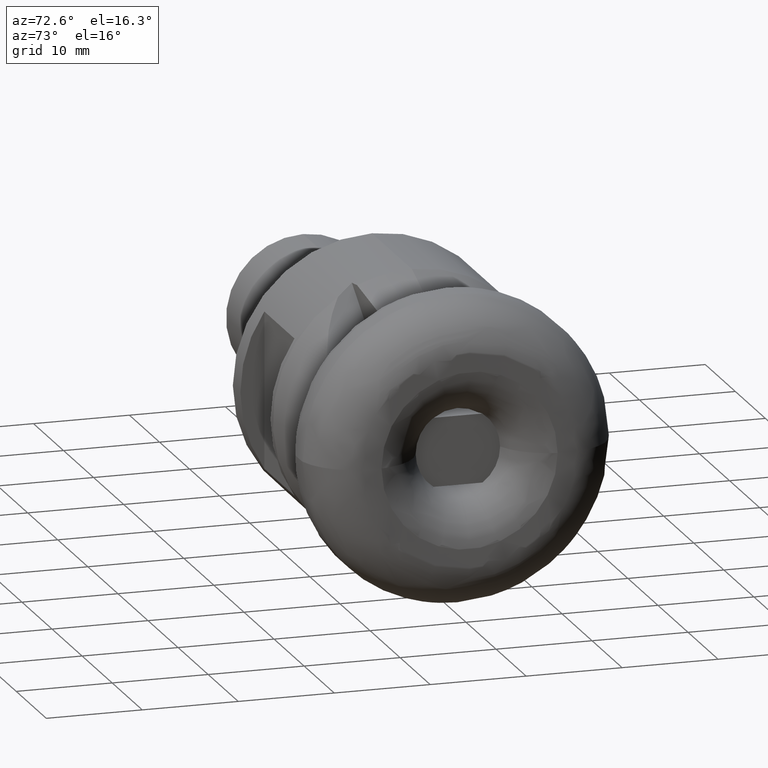
[diagram: clean part render]
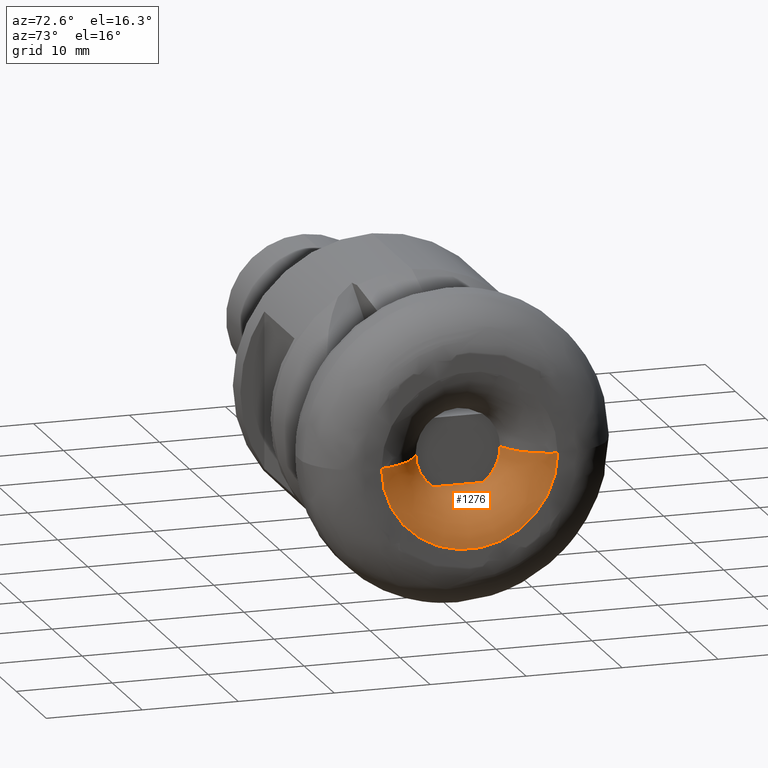
[diagram: same view with one face highlighted and labeled with its STEP entity id]
A machine part, auxiliary view. The second image highlights one B-rep face of the part: STEP entity #1276.
In plain terms, the highlighted face is a freeform B-spline surface patch.
Its self-contained STEP definition (entity closure, byte-faithful):
#9 = CARTESIAN_POINT ( 'NONE',  ( 1.067379867998311500, 8.379926924697313600, -16.75985384939463400 ) ) ;
#12 = CARTESIAN_POINT ( 'NONE',  ( -10.48544431333605500, -1.605228723817149600, -10.85278601772631300 ) ) ;
#37 = ORIENTED_EDGE ( 'NONE', *, *, #2577, .F. ) ;
#60 = CARTESIAN_POINT ( 'NONE',  ( -10.48600671070015100, 4.655781265593266700, -9.951936159802992100 ) ) ;
#69 = B_SPLINE_CURVE_WITH_KNOTS ( 'NONE', 3,
 ( #4287, #12, #2182, #3241 ),
 .UNSPECIFIED., .F., .F.,
 ( 4, 4 ),
 ( 0.005503314891926167900, 0.005552561718665573400 ),
 .UNSPECIFIED. ) ;
#74 = CARTESIAN_POINT ( 'NONE',  ( -10.45237668160464200, -9.134434584422438200, -18.26886916884486900 ) ) ;
#78 = CARTESIAN_POINT ( 'NONE',  ( -10.47597798006455400, 4.654371819418726000, -9.739200144598816800 ) ) ;
#107 = CARTESIAN_POINT ( 'NONE',  ( -10.45237668160464200, 9.134434584422431100, -18.26886916884487300 ) ) ;
#113 = CARTESIAN_POINT ( 'NONE',  ( -3.251121493949604700, 2.259637268792998200, -3.574999999999999700 ) ) ;
#120 = CARTESIAN_POINT ( 'NONE',  ( -10.47368506971843500, 10.78483693438823800, -21.56967386877648700 ) ) ;
#139 = CARTESIAN_POINT ( 'NONE',  ( -10.48600671070064300, -10.98714396566076900, -21.97428793132152700 ) ) ;
#163 = CARTESIAN_POINT ( 'NONE',  ( -5.118955378147735000, -4.188175853357816600, 5.129036153080884900E-016 ) ) ;
#174 = CARTESIAN_POINT ( 'NONE',  ( -9.604451533201627800, 6.788066314743624700, -13.57613262948725500 ) ) ;
#183 = CARTESIAN_POINT ( 'NONE',  ( -10.44215901969386500, 7.808659437891313000, -4.338221937579614700 ) ) ;
#188 = CARTESIAN_POINT ( 'NONE',  ( -6.645280039818617400, 4.420941841868463800, -8.841883683736931200 ) ) ;
#195 = CARTESIAN_POINT ( 'NONE',  ( -10.45538656842848700, 4.285056026069956800, -8.293078092328240600 ) ) ;
#198 = ORIENTED_EDGE ( 'NONE', *, *, #1752, .F. ) ;
#206 = CARTESIAN_POINT ( 'NONE',  ( -5.784081264760682300, 4.171250963006362300, -1.021661828057211500E-015 ) ) ;
#212 = VERTEX_POINT ( 'NONE', #2777 ) ;
#216 = CARTESIAN_POINT ( 'NONE',  ( -10.47543953837696100, 4.142371730854706300, -9.917846056813873500 ) ) ;
#221 = CARTESIAN_POINT ( 'NONE',  ( -5.611969382517601800, -2.162393899905627600, -3.574999999999999700 ) ) ;
#223 = CARTESIAN_POINT ( 'NONE',  ( -7.097163750130784300, 4.614847550817381200, -9.229695101634765900 ) ) ;
#231 = CARTESIAN_POINT ( 'NONE',  ( 1.188971981399534100, 9.014027917577308800, 0.0000000000000000000 ) ) ;
#233 = CARTESIAN_POINT ( 'NONE',  ( -3.745144218702563400, -2.163161000948214100, -3.574999999999998400 ) ) ;
#234 = CARTESIAN_POINT ( 'NONE',  ( -0.08872069744216871900, 6.176356239475429900, -12.35271247895086200 ) ) ;
#243 = CARTESIAN_POINT ( 'NONE',  ( -8.208382300298852700, -1.727485968987953600, -5.013226159286463500 ) ) ;
#250 = CARTESIAN_POINT ( 'NONE',  ( -2.210395900925400600, 4.589106594781879900, -1.124006940449127800E-015 ) ) ;
#252 = B_SPLINE_CURVE_WITH_KNOTS ( 'NONE', 3,
 ( #1041, #4205, #3154, #2088, #1389, #305, #1404, #1762, #340, #3531, #1774, #2843, #3483, #3830, #2072, #4574, #2889, #3567, #1461, #3934, #483, #3912, #3319, #1802, #1191, #4030, #2264, #113, #3196, #1908, #1080, #3550 ),
 .UNSPECIFIED., .F., .F.,
 ( 4, 2, 2, 2, 2, 2, 2, 2, 2, 2, 2, 2, 2, 2, 2, 4 ),
 ( 0.0008397976179486130500, 0.002285553192722741500, 0.002646992086416273400, 0.003008430980109805300, 0.003369869873803337600, 0.003550589320650103500, 0.003731308767496869500, 0.003912028214343636300, 0.004092747661190401800, 0.004454186554883933700, 0.005177064342270997500, 0.005538503235964530200, 0.005719222682811296600, 0.005899942129658063000, 0.006261381023351596600, 0.006622819917045131100 ),
 .UNSPECIFIED. ) ;
#256 = CARTESIAN_POINT ( 'NONE',  ( -7.419711424726376200, -2.036089382956934200, -4.328287005768895100 ) ) ;
#264 = EDGE_CURVE ( 'NONE', #2283, #1067, #2605, .T. ) ;
#269 = CARTESIAN_POINT ( 'NONE',  ( 0.3199818495567188200, -6.730255949794589300, -13.46051189958917100 ) ) ;
#279 = CARTESIAN_POINT ( 'NONE',  ( 1.188971981399534100, -9.014027917577308800, 1.103900043668593300E-015 ) ) ;
#286 = CARTESIAN_POINT ( 'NONE',  ( -1.631515441650169200, 4.881171747774876800, -1.195542271400198800E-015 ) ) ;
#289 = CARTESIAN_POINT ( 'NONE',  ( 0.9325009150308992700, -7.958921773045291900, 9.746868074024094800E-016 ) ) ;
#294 = CARTESIAN_POINT ( 'NONE',  ( -3.762881051512241700, -4.176280351280595900, 5.114468364537766100E-016 ) ) ;
#302 = CARTESIAN_POINT ( 'NONE',  ( -2.450244428154865900, -4.488490343655822600, 5.496815332361906400E-016 ) ) ;
#305 = CARTESIAN_POINT ( 'NONE',  ( -6.492019286283263700, 2.528568112786400600, -3.575000000000000600 ) ) ;
#310 = CARTESIAN_POINT ( 'NONE',  ( 1.187037983504640700, 8.979721184286814800, -2.199397361114505300E-015 ) ) ;
#321 = CARTESIAN_POINT ( 'NONE',  ( -10.47399568052524500, 4.654093225386843000, -9.421937007883704100 ) ) ;
#329 = CARTESIAN_POINT ( 'NONE',  ( 0.7695313778509583800, 7.543971141919427300, -1.847740022362325900E-015 ) ) ;
#340 = CARTESIAN_POINT ( 'NONE',  ( -6.060025598748031200, 2.293122169060559200, -3.574999999999997500 ) ) ;
#344 = CARTESIAN_POINT ( 'NONE',  ( 1.189873394981634200, 9.060216140951070000, -2.219112939319782300E-015 ) ) ;
#347 = DIRECTION ( 'NONE',  ( 0.0000000000000000000, 0.0000000000000000000, -1.000000000000000000 ) ) ;
#348 = CARTESIAN_POINT ( 'NONE',  ( -9.461092481231077000, -1.143295441818945200, -6.473624714085334900 ) ) ;
#353 = VERTEX_POINT ( 'NONE', #2875 ) ;
#359 = CARTESIAN_POINT ( 'NONE',  ( 0.7695313778509584900, -7.543971141919429100, -15.08794228383885100 ) ) ;
#377 = CARTESIAN_POINT ( 'NONE',  ( 1.148584333874834300, 8.719356746933838700, -17.43871349386768400 ) ) ;
#380 = VERTEX_POINT ( 'NONE', #1807 ) ;
#396 = B_SPLINE_CURVE_WITH_KNOTS ( 'NONE', 3,
 ( #2392, #4114, #243, #2016 ),
 .UNSPECIFIED., .F., .F.,
 ( 4, 4 ),
 ( 0.0000000000000000000, 0.0007024435856688279700 ),
 .UNSPECIFIED. ) ;
#398 = CARTESIAN_POINT ( 'NONE',  ( -10.47257135249234300, -1.001141356968045000, -10.35402288583188300 ) ) ;
#400 = CARTESIAN_POINT ( 'NONE',  ( -2.700000000000005500, -2.561565834020060400, -3.574999999999998400 ) ) ;
#441 = CARTESIAN_POINT ( 'NONE',  ( -10.37187052280041800, -8.600575054780021500, 1.053266671166292500E-015 ) ) ;
#455 = CARTESIAN_POINT ( 'NONE',  ( -10.47368506971843500, 10.78483693438824500, -2.641523206204943400E-015 ) ) ;
#467 = CARTESIAN_POINT ( 'NONE',  ( -10.30967617209714500, -8.372843350682915200, 1.025377580917603200E-015 ) ) ;
#473 = CARTESIAN_POINT ( 'NONE',  ( -10.47387837767205300, 4.654076739545939900, -9.527581719887201900 ) ) ;
#483 = CARTESIAN_POINT ( 'NONE',  ( -4.352914919586835300, 2.169367330946506900, -3.574999999999999700 ) ) ;
#496 = CARTESIAN_POINT ( 'NONE',  ( -10.45044631800784700, -8.981889620801741400, -17.96377924160347600 ) ) ;
#520 = CARTESIAN_POINT ( 'NONE',  ( 1.196236925518114200, -9.181471316515510800, 1.540553596743229900E-015 ) ) ;
#528 = CARTESIAN_POINT ( 'NONE',  ( -9.111324160417657600, -6.120562547100388600, -12.24112509420077500 ) ) ;
#537 = CARTESIAN_POINT ( 'NONE',  ( -2.700000000000005500, 4.397981869223527500, 0.0000000000000000000 ) ) ;
#540 = CARTESIAN_POINT ( 'NONE',  ( -8.033366745486231900, -5.166968618525487500, -10.33393723705097100 ) ) ;
#551 = CARTESIAN_POINT ( 'NONE',  ( -10.44486272168322200, 4.359937086564217500, -7.816371629821431600 ) ) ;
#561 = CARTESIAN_POINT ( 'NONE',  ( -9.604451533201627800, -6.788066314743629100, -13.57613262948725300 ) ) ;
#567 = CARTESIAN_POINT ( 'NONE',  ( -10.05705037114183800, 6.565568397084161000, -3.936757444207653400 ) ) ;
#569 = CARTESIAN_POINT ( 'NONE',  ( -10.48600671070015100, 0.0000000000000000000, 0.0000000000000000000 ) ) ;
#571 = CARTESIAN_POINT ( 'NONE',  ( -3.402406267962433600, -2.199629815810408800, -3.574999999999999700 ) ) ;
#572 = CARTESIAN_POINT ( 'NONE',  ( -10.47468532935463500, -1.000844256895285300, -10.62572994978429700 ) ) ;
#573 = CARTESIAN_POINT ( 'NONE',  ( -10.13025188938043200, 7.843208463410970700, -15.68641692682194700 ) ) ;
#581 = CARTESIAN_POINT ( 'NONE',  ( -9.049870858528708000, 5.057132054932155900, -3.333852271268058100 ) ) ;
#587 = CARTESIAN_POINT ( 'NONE',  ( -5.884890432630901300, -2.215253201592659600, -3.574999999999997500 ) ) ;
#589 = CARTESIAN_POINT ( 'NONE',  ( -6.645280039818618300, 4.420941841868465600, -1.082818455172164200E-015 ) ) ;
#599 = CARTESIAN_POINT ( 'NONE',  ( -10.47474655839596000, 9.691397389041400200, -4.592914627923384800 ) ) ;
#613 = CARTESIAN_POINT ( 'NONE',  ( -5.118955378147735000, 4.188175853357816600, -1.025807230616177000E-015 ) ) ;
#622 = CARTESIAN_POINT ( 'NONE',  ( -10.48429113168588600, 4.079389371829461400, -10.14828867284540700 ) ) ;
#630 = CARTESIAN_POINT ( 'NONE',  ( -3.142136297672034800, 4.264716923464080300, -8.529433846928164100 ) ) ;
#641 = CARTESIAN_POINT ( 'NONE',  ( -2.474642490229993300, 4.478255377574950700, -8.956510755149906800 ) ) ;
#647 = CARTESIAN_POINT ( 'NONE',  ( -8.349760003117008700, -1.905379579436143700, -5.070521566728026600 ) ) ;
#650 = CARTESIAN_POINT ( 'NONE',  ( -2.616169716958707300, -4.426986911674294600, 5.421495351249150700E-016 ) ) ;
#657 = CARTESIAN_POINT ( 'NONE',  ( -0.08872069744216871900, -6.176356239475433400, -12.35271247895086000 ) ) ;
#658 = AXIS2_PLACEMENT_3D ( 'NONE', #2579, #1179, #2972 ) ;
#667 = CARTESIAN_POINT ( 'NONE',  ( -10.45780763178368200, 4.651818143504503800, -8.256697074770954700 ) ) ;
#676 = CARTESIAN_POINT ( 'NONE',  ( -2.695906047451931200, -4.397824506795085000, -8.795649013590164600 ) ) ;
#684 = CARTESIAN_POINT ( 'NONE',  ( -0.7524512817705967200, -5.502010346302266300, 6.738019359474691500E-016 ) ) ;
#689 = CARTESIAN_POINT ( 'NONE',  ( 1.189873394981634500, -9.060216140951070000, -18.12043228190213600 ) ) ;
#693 = CARTESIAN_POINT ( 'NONE',  ( -10.39799563849257400, -1.011622290062095700, -8.658737199447347900 ) ) ;
#699 = CARTESIAN_POINT ( 'NONE',  ( 0.4363529315200703800, -6.916485274991484500, 8.470251553368122100E-016 ) ) ;
#701 = EDGE_CURVE ( 'NONE', #1874, #1781, #2749, .T. ) ;
#715 = CARTESIAN_POINT ( 'NONE',  ( 1.183703442544825000, 8.942994974533057500, -2.190402034070554900E-015 ) ) ;
#737 = CARTESIAN_POINT ( 'NONE',  ( 0.4363529315200703800, 6.916485274991480000, -13.83297054998296500 ) ) ;
#750 = CARTESIAN_POINT ( 'NONE',  ( 1.188971981399534300, -9.014027917577310600, -18.02805583515461100 ) ) ;
#809 = CARTESIAN_POINT ( 'NONE',  ( -10.47888260295977000, -1.401626950940206600, -10.76236340911950000 ) ) ;
#812 = CARTESIAN_POINT ( 'NONE',  ( -10.47539873504428300, 10.53594664612174900, -21.07189329224350900 ) ) ;
#816 = EDGE_CURVE ( 'NONE', #4228, #3604, #1580, .T. ) ;
#823 = AXIS2_PLACEMENT_3D ( 'NONE', #2852, #3855, #347 ) ;
#831 = CARTESIAN_POINT ( 'NONE',  ( -10.37187052280041800, -8.600575054780023300, -17.20115010956003900 ) ) ;
#860 = CARTESIAN_POINT ( 'NONE',  ( -10.41876883470581400, -8.806954317537064400, 1.078540841520873000E-015 ) ) ;
#869 = CARTESIAN_POINT ( 'NONE',  ( -1.631515441650169200, 4.881171747774876800, 0.0000000000000000000 ) ) ;
#893 = CARTESIAN_POINT ( 'NONE',  ( -6.166251232322025500, -4.279186022634316800, 5.240491465575209200E-016 ) ) ;
#894 = VERTEX_POINT ( 'NONE', #2709 ) ;
#899 =( BOUNDED_SURFACE ( )  B_SPLINE_SURFACE ( 3, 3, ( 
 ( #2917, #139, #2278, #1560 ),
 ( #1931, #2247, #2642, #3350 ),
 ( #1903, #2296, #4057, #2599 ),
 ( #2980, #4020, #120, #455 ),
 ( #4423, #3302, #812, #2231 ),
 ( #3010, #1219, #2965, #1238 ),
 ( #2948, #4388, #4039, #1587 ),
 ( #4008, #1167, #3645, #3686 ),
 ( #2257, #2632, #1868, #1540 ),
 ( #1914, #74, #107, #3331 ),
 ( #2991, #496, #2586, #2616 ),
 ( #860, #1524, #1200, #1185 ),
 ( #441, #831, #3310, #3663 ),
 ( #467, #1578, #3677, #1993 ),
 ( #1308, #3398, #4486, #2704 ),
 ( #1270, #957, #3052, #924 ),
 ( #1627, #3753, #573, #1643 ),
 ( #3723, #4105, #1964, #2321 ),
 ( #2692, #4459, #3084, #3071 ),
 ( #1320, #561, #174, #2678 ),
 ( #2337, #528, #1606, #3740 ),
 ( #3789, #2724, #4133, #935 ),
 ( #4075, #540, #1657, #4087 ),
 ( #3025, #3426, #3377, #3037 ),
 ( #3440, #909, #1977, #3773 ),
 ( #2366, #4476, #223, #2354 ),
 ( #2007, #4503, #188, #589 ),
 ( #893, #3416, #1950, #4438 ),
 ( #2308, #1292, #4121, #206 ),
 ( #163, #2659, #1257, #613 ),
 ( #2444, #3848, #1020, #1691 ),
 ( #294, #2742, #4179, #1364 ),
 ( #4164, #3799, #970, #3463 ),
 ( #1378, #2804, #630, #3835 ),
 ( #2090, #1676, #4143, #3498 ),
 ( #1739, #676, #3476, #3157 ),
 ( #1719, #1337, #641, #983 ),
 ( #4208, #2399, #2033, #250 ),
 ( #1032, #4190, #2075, #4577 ),
 ( #4595, #1353, #2428, #286 ),
 ( #3812, #3514, #3132, #1002 ),
 ( #4541, #2023, #2757, #1392 ),
 ( #3113, #2791, #4528, #2382 ),
 ( #1704, #657, #234, #3486 ),
 ( #3143, #3098, #2053, #4555 ),
 ( #2415, #269, #2774, #1065 ),
 ( #699, #2103, #737, #3570 ),
 ( #3861, #4234, #1451, #3874 ),
 ( #2816, #359, #3172, #329 ),
 ( #2874, #1764, #3190, #3219 ),
 ( #2162, #2124, #9, #1795 ),
 ( #4631, #1089, #377, #1046 ),
 ( #1099, #1408, #4612, #715 ),
 ( #2476, #2832, #3581, #310 ),
 ( #3201, #750, #2463, #3554 ),
 ( #3536, #689, #2488, #344 ),
 ( #2519, #3524, #1778, #1433 ),
 ( #1420, #3892, #4245, #2137 ),
 ( #3239, #1751, #4264, #4284 ) ),
 .UNSPECIFIED., .F., .F., .F. ) 
 B_SPLINE_SURFACE_WITH_KNOTS ( ( 4, 1, 1, 1, 1, 1, 1, 1, 1, 1, 1, 1, 1, 1, 1, 1, 1, 1, 1, 1, 1, 1, 1, 1, 1, 1, 1, 1, 1, 1, 1, 1, 1, 1, 1, 1, 1, 1, 1, 1, 1, 1, 1, 1, 1, 1, 1, 1, 1, 1, 1, 1, 1, 1, 1, 1, 4 ),
 ( 4, 4 ),
 ( 0.4999999999996210300, 0.5003175608661287700, 0.5039215319788443700, 0.5119964657262137100, 0.5202347958581455800, 0.5297574183266229300, 0.5365480597374467900, 0.5433700374602902200, 0.5501920151831336500, 0.5548986263822400800, 0.5555264315567919300, 0.5644275730817160900, 0.5718417023472249800, 0.5744308341954856800, 0.5799916302882111000, 0.5837508030719731300, 0.5917577467450526600, 0.5975502479082777100, 0.6101034631075639100, 0.6422973552662081300, 0.6635078750031856400, 0.6831801212257742100, 0.6844212944408606400, 0.6941395665271582500, 0.7022524604105622200, 0.7218360567329802400, 0.7333466264386665500, 0.7423313418034049900, 0.7534261199567586800, 0.7862299049783828500, 0.7999479830880397200, 0.8046532989907166900, 0.8151411502972368800, 0.8213940497592500100, 0.8239548243352570200, 0.8331778596193060200, 0.8402438942026269100, 0.8469013214712592900, 0.8545268293927179600, 0.8708287394166310800, 0.8865408225666108200, 0.9010516990959746000, 0.9099792023018491400, 0.9231595823353396800, 0.9325586789250671600, 0.9335901621751227000, 0.9407499277504881600, 0.9572978265888648600, 0.9657221026848841200, 0.9764435235091663000, 0.9926937184153159500, 0.9936017512099668500, 0.9945721011111279300, 0.9956460867926569800, 0.9963535359765139900, 0.9982725544621553500, 1.000000000000000000 ),
 ( 0.0000000000000000000, 1.000000000000000000 ),
 .UNSPECIFIED. ) 
 GEOMETRIC_REPRESENTATION_ITEM ( )  RATIONAL_B_SPLINE_SURFACE ( (
 ( 1.000000000000000000, 0.3333333333333334300, 0.3333333333333334300, 1.000000000000000000),
 ( 1.000000000000000000, 0.3333333333333334300, 0.3333333333333334300, 1.000000000000000000),
 ( 1.000000000000000000, 0.3333333333333334300, 0.3333333333333334300, 1.000000000000000000),
 ( 1.000000000000000000, 0.3333333333333334300, 0.3333333333333334300, 1.000000000000000000),
 ( 1.000000000000000000, 0.3333333333333334300, 0.3333333333333334300, 1.000000000000000000),
 ( 1.000000000000000000, 0.3333333333333334300, 0.3333333333333334300, 1.000000000000000000),
 ( 1.000000000000000000, 0.3333333333333334300, 0.3333333333333334300, 1.000000000000000000),
 ( 1.000000000000000000, 0.3333333333333334300, 0.3333333333333334300, 1.000000000000000000),
 ( 1.000000000000000000, 0.3333333333333334300, 0.3333333333333334300, 1.000000000000000000),
 ( 1.000000000000000000, 0.3333333333333334300, 0.3333333333333334300, 1.000000000000000000),
 ( 1.000000000000000000, 0.3333333333333334300, 0.3333333333333334300, 1.000000000000000000),
 ( 1.000000000000000000, 0.3333333333333334300, 0.3333333333333334300, 1.000000000000000000),
 ( 1.000000000000000000, 0.3333333333333334300, 0.3333333333333334300, 1.000000000000000000),
 ( 1.000000000000000000, 0.3333333333333334300, 0.3333333333333334300, 1.000000000000000000),
 ( 1.000000000000000000, 0.3333333333333334300, 0.3333333333333334300, 1.000000000000000000),
 ( 1.000000000000000000, 0.3333333333333334300, 0.3333333333333334300, 1.000000000000000000),
 ( 1.000000000000000000, 0.3333333333333334300, 0.3333333333333334300, 1.000000000000000000),
 ( 1.000000000000000000, 0.3333333333333334300, 0.3333333333333334300, 1.000000000000000000),
 ( 1.000000000000000000, 0.3333333333333334300, 0.3333333333333334300, 1.000000000000000000),
 ( 1.000000000000000000, 0.3333333333333334300, 0.3333333333333334300, 1.000000000000000000),
 ( 1.000000000000000000, 0.3333333333333334300, 0.3333333333333334300, 1.000000000000000000),
 ( 1.000000000000000000, 0.3333333333333334300, 0.3333333333333334300, 1.000000000000000000),
 ( 1.000000000000000000, 0.3333333333333334300, 0.3333333333333334300, 1.000000000000000000),
 ( 1.000000000000000000, 0.3333333333333334300, 0.3333333333333334300, 1.000000000000000000),
 ( 1.000000000000000000, 0.3333333333333334300, 0.3333333333333334300, 1.000000000000000000),
 ( 1.000000000000000000, 0.3333333333333334300, 0.3333333333333334300, 1.000000000000000000),
 ( 1.000000000000000000, 0.3333333333333334300, 0.3333333333333334300, 1.000000000000000000),
 ( 1.000000000000000000, 0.3333333333333334300, 0.3333333333333334300, 1.000000000000000000),
 ( 1.000000000000000000, 0.3333333333333334300, 0.3333333333333334300, 1.000000000000000000),
 ( 1.000000000000000000, 0.3333333333333334300, 0.3333333333333334300, 1.000000000000000000),
 ( 1.000000000000000000, 0.3333333333333334300, 0.3333333333333334300, 1.000000000000000000),
 ( 1.000000000000000000, 0.3333333333333334300, 0.3333333333333334300, 1.000000000000000000),
 ( 1.000000000000000000, 0.3333333333333334300, 0.3333333333333334300, 1.000000000000000000),
 ( 1.000000000000000000, 0.3333333333333334300, 0.3333333333333334300, 1.000000000000000000),
 ( 1.000000000000000000, 0.3333333333333334300, 0.3333333333333334300, 1.000000000000000000),
 ( 1.000000000000000000, 0.3333333333333334300, 0.3333333333333334300, 1.000000000000000000),
 ( 1.000000000000000000, 0.3333333333333334300, 0.3333333333333334300, 1.000000000000000000),
 ( 1.000000000000000000, 0.3333333333333334300, 0.3333333333333334300, 1.000000000000000000),
 ( 1.000000000000000000, 0.3333333333333334300, 0.3333333333333334300, 1.000000000000000000),
 ( 1.000000000000000000, 0.3333333333333334300, 0.3333333333333334300, 1.000000000000000000),
 ( 1.000000000000000000, 0.3333333333333334300, 0.3333333333333334300, 1.000000000000000000),
 ( 1.000000000000000000, 0.3333333333333334300, 0.3333333333333334300, 1.000000000000000000),
 ( 1.000000000000000000, 0.3333333333333334300, 0.3333333333333334300, 1.000000000000000000),
 ( 1.000000000000000000, 0.3333333333333334300, 0.3333333333333334300, 1.000000000000000000),
 ( 1.000000000000000000, 0.3333333333333334300, 0.3333333333333334300, 1.000000000000000000),
 ( 1.000000000000000000, 0.3333333333333334300, 0.3333333333333334300, 1.000000000000000000),
 ( 1.000000000000000000, 0.3333333333333334300, 0.3333333333333334300, 1.000000000000000000),
 ( 1.000000000000000000, 0.3333333333333334300, 0.3333333333333334300, 1.000000000000000000),
 ( 1.000000000000000000, 0.3333333333333334300, 0.3333333333333334300, 1.000000000000000000),
 ( 1.000000000000000000, 0.3333333333333334300, 0.3333333333333334300, 1.000000000000000000),
 ( 1.000000000000000000, 0.3333333333333334300, 0.3333333333333334300, 1.000000000000000000),
 ( 1.000000000000000000, 0.3333333333333334300, 0.3333333333333334300, 1.000000000000000000),
 ( 1.000000000000000000, 0.3333333333333334300, 0.3333333333333334300, 1.000000000000000000),
 ( 1.000000000000000000, 0.3333333333333334300, 0.3333333333333334300, 1.000000000000000000),
 ( 1.000000000000000000, 0.3333333333333334300, 0.3333333333333334300, 1.000000000000000000),
 ( 1.000000000000000000, 0.3333333333333334300, 0.3333333333333334300, 1.000000000000000000),
 ( 1.000000000000000000, 0.3333333333333334300, 0.3333333333333334300, 1.000000000000000000),
 ( 1.000000000000000000, 0.3333333333333334300, 0.3333333333333334300, 1.000000000000000000),
 ( 1.000000000000000000, 0.3333333333333334300, 0.3333333333333334300, 1.000000000000000000) ) ) 
 REPRESENTATION_ITEM ( '' )  SURFACE ( )  );
#909 = CARTESIAN_POINT ( 'NONE',  ( -7.509760719864655000, -4.833774186102624900, -9.667548372205246200 ) ) ;
#916 = AXIS2_PLACEMENT_3D ( 'NONE', #1663, #4139, #2014 ) ;
#917 = CARTESIAN_POINT ( 'NONE',  ( -10.40488679224093900, 4.644380604542020800, -7.415726681809488200 ) ) ;
#919 = CARTESIAN_POINT ( 'NONE',  ( -8.584405901549141400, 4.388528700604435800, -3.505180075630509600 ) ) ;
#922 = CARTESIAN_POINT ( 'NONE',  ( -2.210395900925400600, 4.589106594781879900, 0.0000000000000000000 ) ) ;
#924 = CARTESIAN_POINT ( 'NONE',  ( -10.20494859692230700, 8.046234766007600600, -1.970759130275872000E-015 ) ) ;
#928 = CARTESIAN_POINT ( 'NONE',  ( -10.47663498649214400, 4.133865675531214200, -9.976957981516134700 ) ) ;
#931 = CARTESIAN_POINT ( 'NONE',  ( -0.08872069744216871900, 6.176356239475431700, 0.0000000000000000000 ) ) ;
#935 = CARTESIAN_POINT ( 'NONE',  ( -8.454876634702470600, 5.484009002743592400, -1.343194814341041800E-015 ) ) ;
#942 = EDGE_CURVE ( 'NONE', #2496, #1781, #3543, .T. ) ;
#948 = CARTESIAN_POINT ( 'NONE',  ( -10.46346622443963900, 4.227566286320930900, -8.894617457250198800 ) ) ;
#957 = CARTESIAN_POINT ( 'NONE',  ( -10.20494859692230500, -8.046234766007600600, -16.09246953201519800 ) ) ;
#963 = CARTESIAN_POINT ( 'NONE',  ( -10.48374409903253800, 9.892918422648342900, -4.627345097343216200 ) ) ;
#970 = CARTESIAN_POINT ( 'NONE',  ( -3.401029833606248300, 4.186544520924163800, -8.373089041848329500 ) ) ;
#983 = CARTESIAN_POINT ( 'NONE',  ( -2.474642490229993300, 4.478255377574953400, -1.096856222782317700E-015 ) ) ;
#997 = EDGE_CURVE ( 'NONE', #3074, #894, #3653, .T. ) ;
#1001 = CARTESIAN_POINT ( 'NONE',  ( -10.48600671070014900, 9.960098711190697800, -4.638293456130279300 ) ) ;
#1002 = CARTESIAN_POINT ( 'NONE',  ( -1.211605073323675400, 5.144814942715699500, -1.260116230360450800E-015 ) ) ;
#1004 = ORIENTED_EDGE ( 'NONE', *, *, #3669, .T. ) ;
#1020 = CARTESIAN_POINT ( 'NONE',  ( -4.402109275840082600, 4.182417321202080100, -8.364834642404163700 ) ) ;
#1032 = CARTESIAN_POINT ( 'NONE',  ( -1.969306394061423300, -4.702919722866177200, 5.759415585255021800E-016 ) ) ;
#1038 = CARTESIAN_POINT ( 'NONE',  ( 1.194666039165737100, -9.159960261185380800, 1.121771601417763100E-015 ) ) ;
#1041 = CARTESIAN_POINT ( 'NONE',  ( -8.010635197685022700, 3.717124572395988900, -3.574999999999998000 ) ) ;
#1046 = CARTESIAN_POINT ( 'NONE',  ( 1.148584333874834300, 8.719356746933842200, -2.135626466151281600E-015 ) ) ;
#1065 = CARTESIAN_POINT ( 'NONE',  ( 0.3199818495567188200, 6.730255949794587500, -1.648437281271674300E-015 ) ) ;
#1067 = VERTEX_POINT ( 'NONE', #3181 ) ;
#1080 = CARTESIAN_POINT ( 'NONE',  ( -2.808228926019233500, 2.497272812792520100, -3.574999999999999700 ) ) ;
#1085 = CARTESIAN_POINT ( 'NONE',  ( -10.41267816395459700, -1.009558795678138200, -8.725224962461469500 ) ) ;
#1089 = CARTESIAN_POINT ( 'NONE',  ( 1.148584333874834300, -8.719356746933844000, -17.43871349386768100 ) ) ;
#1099 = CARTESIAN_POINT ( 'NONE',  ( 1.183703442544825000, -8.942994974533057500, 1.095201017035277400E-015 ) ) ;
#1113 = EDGE_CURVE ( 'NONE', #3718, #2342, #3705, .T. ) ;
#1149 = ORIENTED_EDGE ( 'NONE', *, *, #2936, .F. ) ;
#1167 = CARTESIAN_POINT ( 'NONE',  ( -10.45989361364657800, -9.618291111235794900, -19.23658222247157900 ) ) ;
#1179 = DIRECTION ( 'NONE',  ( 1.000000000000000000, -0.0000000000000000000, -0.0000000000000000000 ) ) ;
#1185 = CARTESIAN_POINT ( 'NONE',  ( -10.41876883470581400, 8.806954317537064400, -2.157081683041745900E-015 ) ) ;
#1191 = CARTESIAN_POINT ( 'NONE',  ( -3.612424761830615800, 2.166019893060708000, -3.574999999999998400 ) ) ;
#1200 = CARTESIAN_POINT ( 'NONE',  ( -10.41876883470581200, 8.806954317537060800, -17.61390863507412900 ) ) ;
#1219 = CARTESIAN_POINT ( 'NONE',  ( -10.46855769648655300, -10.21354523948286400, -20.42709047896572000 ) ) ;
#1235 = ORIENTED_EDGE ( 'NONE', *, *, #997, .F. ) ;
#1238 = CARTESIAN_POINT ( 'NONE',  ( -10.46855769648655300, 10.21354523948286200, -2.501597097095874400E-015 ) ) ;
#1257 = CARTESIAN_POINT ( 'NONE',  ( -5.118955378147735000, 4.188175853357814800, -8.376351706715631500 ) ) ;
#1270 = CARTESIAN_POINT ( 'NONE',  ( -10.20494859692230700, -8.046234766007600600, 9.853795651379360100E-016 ) ) ;
#1276 = ADVANCED_FACE ( 'NONE', ( #2907 ), #899, .T. ) ;
#1281 = CARTESIAN_POINT ( 'NONE',  ( -10.47350558233748100, 4.156132543102448700, -9.616291438452336100 ) ) ;
#1287 = VERTEX_POINT ( 'NONE', #2524 ) ;
#1289 = CARTESIAN_POINT ( 'NONE',  ( -1.211605073323675400, 5.144814942715699500, 0.0000000000000000000 ) ) ;
#1292 = CARTESIAN_POINT ( 'NONE',  ( -5.784081264760682300, -4.171250963006363200, -8.342501926012724700 ) ) ;
#1294 = ORIENTED_EDGE ( 'NONE', *, *, #264, .F. ) ;
#1299 = CARTESIAN_POINT ( 'NONE',  ( -10.46111128061182100, 8.615512378084487100, -4.447231129675792300 ) ) ;
#1308 = CARTESIAN_POINT ( 'NONE',  ( -10.25237521015955400, -8.187174188324522800, 1.002639666379345700E-015 ) ) ;
#1315 = CARTESIAN_POINT ( 'NONE',  ( -10.45528171339101700, 8.211679587167012100, -4.394989956243886600 ) ) ;
#1320 = CARTESIAN_POINT ( 'NONE',  ( -9.604451533201626000, -6.788066314743627300, 8.312983684750753800E-016 ) ) ;
#1327 = CARTESIAN_POINT ( 'NONE',  ( -10.47432112278294400, 4.150329671309426000, -9.797744633582251300 ) ) ;
#1337 = CARTESIAN_POINT ( 'NONE',  ( -2.474642490229993300, -4.478255377574954300, -8.956510755149905000 ) ) ;
#1347 = CARTESIAN_POINT ( 'NONE',  ( -10.47000664199162800, 4.181028797299750200, -9.375868444609347200 ) ) ;
#1353 = CARTESIAN_POINT ( 'NONE',  ( -1.631515441650168900, -4.881171747774876800, -9.762343495549751900 ) ) ;
#1359 = CARTESIAN_POINT ( 'NONE',  ( 1.183703442544825000, -8.942994974533057500, 1.095201017035277400E-015 ) ) ;
#1361 = CARTESIAN_POINT ( 'NONE',  ( 0.5930736303431348700, 7.182716851500908100, 0.0000000000000000000 ) ) ;
#1364 = CARTESIAN_POINT ( 'NONE',  ( -3.762881051512241700, 4.176280351280595900, -1.022893672907553200E-015 ) ) ;
#1371 = CARTESIAN_POINT ( 'NONE',  ( -6.386837540989244400, -2.181250340719651500, -3.758321000636039700 ) ) ;
#1373 = CARTESIAN_POINT ( 'NONE',  ( 1.187037983504640700, -8.979721184286814800, 1.099698680557252700E-015 ) ) ;
#1378 = CARTESIAN_POINT ( 'NONE',  ( -3.142136297672034800, -4.264716923464082000, 5.222771929589836200E-016 ) ) ;
#1383 = ORIENTED_EDGE ( 'NONE', *, *, #3116, .T. ) ;
#1389 = CARTESIAN_POINT ( 'NONE',  ( -6.700316076575830900, 2.654857591328216400, -3.575000000000000600 ) ) ;
#1392 = CARTESIAN_POINT ( 'NONE',  ( -0.7524512817705967200, 5.502010346302266300, -1.347603871894938300E-015 ) ) ;
#1395 = CARTESIAN_POINT ( 'NONE',  ( -8.253517086986114700, 3.956636908149589800, -3.574999999999994000 ) ) ;
#1399 = CARTESIAN_POINT ( 'NONE',  ( -10.19409806473674400, -1.040278225271492600, -7.932159763898424900 ) ) ;
#1400 = CARTESIAN_POINT ( 'NONE',  ( -1.969306394061423300, -4.702919722866177200, 5.759415585255021800E-016 ) ) ;
#1404 = CARTESIAN_POINT ( 'NONE',  ( -6.384669947299937800, 2.469284664704027400, -3.574999999999998000 ) ) ;
#1408 = CARTESIAN_POINT ( 'NONE',  ( 1.183703442544825000, -8.942994974533059200, -17.88598994906611100 ) ) ;
#1413 = CARTESIAN_POINT ( 'NONE',  ( -10.45348140853651500, 4.651210132478238000, -7.938864471231363000 ) ) ;
#1414 = CARTESIAN_POINT ( 'NONE',  ( -2.210395900925400600, -4.589106594781879900, 5.620034702245638800E-016 ) ) ;
#1420 = CARTESIAN_POINT ( 'NONE',  ( 1.194666039165737100, -9.159960261185380800, 1.121771601417763100E-015 ) ) ;
#1431 = ORIENTED_EDGE ( 'NONE', *, *, #701, .F. ) ;
#1433 = CARTESIAN_POINT ( 'NONE',  ( 1.190782697478898900, 9.114588558783232500, -2.232430340811794500E-015 ) ) ;
#1443 = EDGE_LOOP ( 'NONE', ( #4437, #3329, #2549, #1431, #3647, #1149, #1294, #1669, #3166, #198, #37, #3583, #1235, #3502, #1004, #2227, #1383, #2269, #2443 ) ) ;
#1451 = CARTESIAN_POINT ( 'NONE',  ( 0.5930736303431348700, 7.182716851500905400, -14.36543370300181600 ) ) ;
#1456 = CARTESIAN_POINT ( 'NONE',  ( -8.369829723276030400, -1.296662420701574900, -5.247864465644270600 ) ) ;
#1461 = CARTESIAN_POINT ( 'NONE',  ( -4.970410156665642500, 2.174188053896411800, -3.574999999999998800 ) ) ;
#1514 = B_SPLINE_CURVE_WITH_KNOTS ( 'NONE', 3,
 ( #1986, #4468, #581, #4494, #2373, #2697, #567, #4536, #3409, #3747, #2327, #2750, #183, #3453, #3063, #2684, #1315, #1299, #1666, #2360, #2714, #4140, #599, #3092, #963, #3794 ),
 .UNSPECIFIED., .F., .F.,
 ( 4, 2, 2, 2, 2, 2, 2, 2, 2, 2, 2, 2, 4 ),
 ( 0.0000000000000000000, 0.001632452620050306600, 0.002448678930075458200, 0.003264905240100610200, 0.004081131550125763500, 0.004285188127632052200, 0.004387216416385195600, 0.004489244705138338200, 0.004897357860150908600, 0.005713584170176050200, 0.006121697325188623200, 0.006325753902694906600, 0.006529810480201190100 ),
 .UNSPECIFIED. ) ;
#1524 = CARTESIAN_POINT ( 'NONE',  ( -10.41876883470581200, -8.806954317537066100, -17.61390863507412500 ) ) ;
#1540 = CARTESIAN_POINT ( 'NONE',  ( -10.45607954766761700, 9.363093145128242900, -2.293296410059965500E-015 ) ) ;
#1560 = CARTESIAN_POINT ( 'NONE',  ( -10.48600671070064300, 10.98714396566076500, -2.691074137863522700E-015 ) ) ;
#1578 = CARTESIAN_POINT ( 'NONE',  ( -10.30967617209714500, -8.372843350682915200, -16.74568670136582700 ) ) ;
#1580 = B_SPLINE_CURVE_WITH_KNOTS ( 'NONE', 3,
 ( #647, #3430, #1707, #3793, #256, #3122, #4199, #1683, #1371, #3469, #3802, #2732 ),
 .UNSPECIFIED., .F., .F.,
 ( 4, 2, 2, 2, 2, 4 ),
 ( 0.01188063165392986300, 0.01259092412648900000, 0.01330121659904813500, 0.01401150907160727100, 0.01436665530788683800, 0.01472180154416640400 ),
 .UNSPECIFIED. ) ;
#1585 = CARTESIAN_POINT ( 'NONE',  ( 0.4363529315200703800, 6.916485274991484500, 0.0000000000000000000 ) ) ;
#1587 = CARTESIAN_POINT ( 'NONE',  ( -10.46443496061784700, 9.907038318969238600, -2.426524553271170500E-015 ) ) ;
#1606 = CARTESIAN_POINT ( 'NONE',  ( -9.111324160417657600, 6.120562547100385900, -12.24112509420077500 ) ) ;
#1625 = CARTESIAN_POINT ( 'NONE',  ( -2.761777688499936500, -2.524867010662903000, -3.574999999999999300 ) ) ;
#1627 = CARTESIAN_POINT ( 'NONE',  ( -10.13025188938043200, -7.843208463410973300, 9.605160139761678100E-016 ) ) ;
#1638 = CARTESIAN_POINT ( 'NONE',  ( -10.46806093776955900, 4.194873202210136000, -9.255760031422024500 ) ) ;
#1643 = CARTESIAN_POINT ( 'NONE',  ( -10.13025188938043200, 7.843208463410973300, -1.921032027952335600E-015 ) ) ;
#1657 = CARTESIAN_POINT ( 'NONE',  ( -8.033366745486231900, 5.166968618525483900, -10.33393723705097300 ) ) ;
#1663 = CARTESIAN_POINT ( 'NONE',  ( 1.196236925518114200, 0.0000000000000000000, 0.0000000000000000000 ) ) ;
#1666 = CARTESIAN_POINT ( 'NONE',  ( -10.46448826383707800, 8.884677097884166500, -4.482556650749088200 ) ) ;
#1669 = ORIENTED_EDGE ( 'NONE', *, *, #1692, .F. ) ;
#1676 = CARTESIAN_POINT ( 'NONE',  ( -2.910275557853575700, -4.328672531718639900, -8.657345063437276200 ) ) ;
#1683 = CARTESIAN_POINT ( 'NONE',  ( -6.495246501544302800, -2.166014454914026100, -3.806626002362363300 ) ) ;
#1691 = CARTESIAN_POINT ( 'NONE',  ( -4.402109275840081700, 4.182417321202081900, -1.024396797021715400E-015 ) ) ;
#1692 = EDGE_CURVE ( 'NONE', #4041, #2283, #4112, .T. ) ;
#1699 = CARTESIAN_POINT ( 'NONE',  ( 0.5930736303431348700, -7.182716851500908100, 8.796291201372343000E-016 ) ) ;
#1704 = CARTESIAN_POINT ( 'NONE',  ( -0.08872069744216871900, -6.176356239475431700, 7.563854899067370900E-016 ) ) ;
#1707 = CARTESIAN_POINT ( 'NONE',  ( -7.991115032729215500, -1.955783842936257300, -4.752269618067382200 ) ) ;
#1715 = CARTESIAN_POINT ( 'NONE',  ( 1.194666039165737100, 9.159960261185380800, 0.0000000000000000000 ) ) ;
#1719 = CARTESIAN_POINT ( 'NONE',  ( -2.474642490229993300, -4.478255377574953400, 5.484281113911588300E-016 ) ) ;
#1732 = CARTESIAN_POINT ( 'NONE',  ( 0.1550363859856253000, -6.485730561549375200, 7.942729172333608300E-016 ) ) ;
#1739 = CARTESIAN_POINT ( 'NONE',  ( -2.695906047451930700, -4.397824506795083200, 5.385781705458386000E-016 ) ) ;
#1749 = CARTESIAN_POINT ( 'NONE',  ( -10.46066403851524000, 4.652219585290811000, -8.468589890217179700 ) ) ;
#1751 = CARTESIAN_POINT ( 'NONE',  ( 1.196236925518114000, -9.181471316515512600, -18.36294263303101500 ) ) ;
#1752 = EDGE_CURVE ( 'NONE', #2826, #3825, #4119, .T. ) ;
#1762 = CARTESIAN_POINT ( 'NONE',  ( -6.167601565915354000, 2.353576336322084700, -3.574999999999998800 ) ) ;
#1764 = CARTESIAN_POINT ( 'NONE',  ( 0.9325009150308993800, -7.958921773045293700, -15.91784354609057800 ) ) ;
#1774 = CARTESIAN_POINT ( 'NONE',  ( -5.834202234331641500, 2.196889651202180300, -3.574999999999993100 ) ) ;
#1778 = CARTESIAN_POINT ( 'NONE',  ( 1.190782697478898900, 9.114588558783228900, -18.22917711756646900 ) ) ;
#1781 = VERTEX_POINT ( 'NONE', #3472 ) ;
#1794 = CARTESIAN_POINT ( 'NONE',  ( -8.253312708875734300, 4.341996586941837300, -3.106848281937561600 ) ) ;
#1795 = CARTESIAN_POINT ( 'NONE',  ( 1.067379867998311500, 8.379926924697317100, -2.052490137083858400E-015 ) ) ;
#1798 = CARTESIAN_POINT ( 'NONE',  ( -10.43927196323497400, -1.005821280929367000, -8.858513503350979000 ) ) ;
#1802 = CARTESIAN_POINT ( 'NONE',  ( -3.674052760312410500, 2.164991499966592200, -3.574999999999998800 ) ) ;
#1807 = CARTESIAN_POINT ( 'NONE',  ( -10.47468532935463500, -1.000844256895285300, -10.62572994978429700 ) ) ;
#1868 = CARTESIAN_POINT ( 'NONE',  ( -10.45607954766761700, 9.363093145128237500, -18.72618629025648600 ) ) ;
#1874 = VERTEX_POINT ( 'NONE', #4590 ) ;
#1881 = CARTESIAN_POINT ( 'NONE',  ( -2.700000000000005500, -4.397981869223527500, 5.385974418853863200E-016 ) ) ;
#1888 = B_SPLINE_CURVE_WITH_KNOTS ( 'NONE', 3,
 ( #3739, #2677, #809, #1976, #3415, #572 ),
 .UNSPECIFIED., .F., .F.,
 ( 4, 2, 4 ),
 ( 4.402440077273620800E-015, 0.0003175362394816857200, 0.0006350724789589689300 ),
 .UNSPECIFIED. ) ;
#1903 = CARTESIAN_POINT ( 'NONE',  ( -10.48404750660613700, -10.93418674979756700, 1.339051680441899000E-015 ) ) ;
#1908 = CARTESIAN_POINT ( 'NONE',  ( -2.918988382296631800, 2.437935036884594900, -3.574999999999998400 ) ) ;
#1914 = CARTESIAN_POINT ( 'NONE',  ( -10.45237668160464200, -9.134434584422436400, 1.118645607583382000E-015 ) ) ;
#1931 = CARTESIAN_POINT ( 'NONE',  ( -10.48586968738671400, -10.98317594230451500, 1.345051126221543800E-015 ) ) ;
#1950 = CARTESIAN_POINT ( 'NONE',  ( -6.166251232322026400, 4.279186022634315000, -8.558372045268633600 ) ) ;
#1952 = VERTEX_POINT ( 'NONE', #3805 ) ;
#1964 = CARTESIAN_POINT ( 'NONE',  ( -10.04507463012523000, 7.641093341065142000, -15.28218668213028900 ) ) ;
#1976 = CARTESIAN_POINT ( 'NONE',  ( -10.47576024926821200, -1.199948578848550000, -10.69810366735641500 ) ) ;
#1977 = CARTESIAN_POINT ( 'NONE',  ( -7.509760719864655000, 4.833774186102620400, -9.667548372205246200 ) ) ;
#1986 = CARTESIAN_POINT ( 'NONE',  ( -8.253312708875734300, 4.341996586941837300, -3.106848281937561600 ) ) ;
#1990 = CARTESIAN_POINT ( 'NONE',  ( -0.7524512817705967200, 5.502010346302266300, 0.0000000000000000000 ) ) ;
#1993 = CARTESIAN_POINT ( 'NONE',  ( -10.30967617209714500, 8.372843350682915200, -2.050755161835206300E-015 ) ) ;
#2005 = CARTESIAN_POINT ( 'NONE',  ( -2.700000000000005500, -2.561565834020060400, -3.574999999999998400 ) ) ;
#2007 = CARTESIAN_POINT ( 'NONE',  ( -6.645280039818618300, -4.420941841868465600, 5.414092275860820800E-016 ) ) ;
#2014 = DIRECTION ( 'NONE',  ( -2.361717714099385700E-017, 1.000000000000000000, 0.0000000000000000000 ) ) ;
#2016 = CARTESIAN_POINT ( 'NONE',  ( -8.349760003117008700, -1.905379579436143700, -5.070521566728026600 ) ) ;
#2023 = CARTESIAN_POINT ( 'NONE',  ( -0.7524512817705968400, -5.502010346302268000, -11.00402069260453100 ) ) ;
#2033 = CARTESIAN_POINT ( 'NONE',  ( -2.210395900925400600, 4.589106594781877200, -9.178213189563759800 ) ) ;
#2043 = CARTESIAN_POINT ( 'NONE',  ( -2.700000000000005500, -4.397981869223527500, 5.385974418853863200E-016 ) ) ;
#2053 = CARTESIAN_POINT ( 'NONE',  ( 0.1550363859856252700, 6.485730561549370800, -12.97146112309874700 ) ) ;
#2063 = B_SPLINE_CURVE_WITH_KNOTS ( 'NONE', 3,
 ( #3841, #2082, #4586, #2437, #1413, #667, #1749, #2456, #2115, #321, #473, #78, #4026, #4373 ),
 .UNSPECIFIED., .F., .F.,
 ( 4, 2, 2, 2, 2, 2, 4 ),
 ( 0.005008480499936283400, 0.005326515642026573800, 0.005644550784116865100, 0.006280621068297445900, 0.006916691352478026800, 0.007234726494568318100, 0.007552761636658608500 ),
 .UNSPECIFIED. ) ;
#2072 = CARTESIAN_POINT ( 'NONE',  ( -5.464544608826178900, 2.163731909002399900, -3.574999999999998400 ) ) ;
#2075 = CARTESIAN_POINT ( 'NONE',  ( -1.969306394061423500, 4.702919722866174500, -9.405839445732354400 ) ) ;
#2078 = EDGE_CURVE ( 'NONE', #2342, #3604, #2468, .T. ) ;
#2082 = CARTESIAN_POINT ( 'NONE',  ( -10.42456065487073500, 4.647145585617832500, -7.518770653424811100 ) ) ;
#2088 = CARTESIAN_POINT ( 'NONE',  ( -6.801686350764158300, 2.721353571521103000, -3.574999999999995300 ) ) ;
#2090 = CARTESIAN_POINT ( 'NONE',  ( -2.910275557853575700, -4.328672531718639000, 5.301094960526301000E-016 ) ) ;
#2096 = CARTESIAN_POINT ( 'NONE',  ( -10.45495960335734500, -1.003616526892053200, -9.129326232338531400 ) ) ;
#2103 = CARTESIAN_POINT ( 'NONE',  ( 0.4363529315200703800, -6.916485274991485400, -13.83297054998296500 ) ) ;
#2110 = DIRECTION ( 'NONE',  ( 0.0000000000000000000, 1.000000000000000000, 0.0000000000000000000 ) ) ;
#2115 = CARTESIAN_POINT ( 'NONE',  ( -10.46956910987475800, 4.653471111452754300, -9.104329357361860900 ) ) ;
#2116 = CARTESIAN_POINT ( 'NONE',  ( -0.3966401133419523200, -5.838191975958114500, 7.149723116164865700E-016 ) ) ;
#2124 = CARTESIAN_POINT ( 'NONE',  ( 1.067379867998311500, -8.379926924697318900, -16.75985384939462700 ) ) ;
#2137 = CARTESIAN_POINT ( 'NONE',  ( 1.194666039165737100, 9.159960261185380800, -2.243543202835526200E-015 ) ) ;
#2149 = CARTESIAN_POINT ( 'NONE',  ( -5.947368655116833700, -2.243013664765889400, -3.574999999999996600 ) ) ;
#2152 = CARTESIAN_POINT ( 'NONE',  ( -10.45950385885312200, -1.002977873431576600, -9.537689944210994100 ) ) ;
#2162 = CARTESIAN_POINT ( 'NONE',  ( 1.067379867998311500, -8.379926924697317100, 1.026245068541929200E-015 ) ) ;
#2182 = CARTESIAN_POINT ( 'NONE',  ( -10.48469093902847500, -1.605334603671180000, -10.83631486948985800 ) ) ;
#2227 = ORIENTED_EDGE ( 'NONE', *, *, #2667, .F. ) ;
#2231 = CARTESIAN_POINT ( 'NONE',  ( -10.47539873504428300, 10.53594664612175300, -2.580562667232059200E-015 ) ) ;
#2247 = CARTESIAN_POINT ( 'NONE',  ( -10.48586968738671400, -10.98317594230451800, -21.96635188460902600 ) ) ;
#2257 = CARTESIAN_POINT ( 'NONE',  ( -10.45607954766761700, -9.363093145128242900, 1.146648205029982800E-015 ) ) ;
#2264 = CARTESIAN_POINT ( 'NONE',  ( -3.428658330782303800, 2.192949312091347500, -3.574999999999999700 ) ) ;
#2269 = ORIENTED_EDGE ( 'NONE', *, *, #816, .T. ) ;
#2278 = CARTESIAN_POINT ( 'NONE',  ( -10.48600671070064300, 10.98714396566076000, -21.97428793132153000 ) ) ;
#2283 = VERTEX_POINT ( 'NONE', #2847 ) ;
#2296 = CARTESIAN_POINT ( 'NONE',  ( -10.48404750660613700, -10.93418674979757000, -21.86837349959513000 ) ) ;
#2308 = CARTESIAN_POINT ( 'NONE',  ( -5.784081264760682300, -4.171250963006362300, 5.108309140286057500E-016 ) ) ;
#2312 = EDGE_CURVE ( 'NONE', #212, #1874, #4332, .T. ) ;
#2319 = CARTESIAN_POINT ( 'NONE',  ( -3.814152590811762600, -2.162475854508563200, -3.574999999999998000 ) ) ;
#2321 = CARTESIAN_POINT ( 'NONE',  ( -10.04507463012523000, 7.641093341065146500, -1.871528100424317400E-015 ) ) ;
#2327 = CARTESIAN_POINT ( 'NONE',  ( -10.41639584870315900, 7.677249179214706800, -4.302997633865239800 ) ) ;
#2337 = CARTESIAN_POINT ( 'NONE',  ( -9.111324160417657600, -6.120562547100387700, 7.495527332287661000E-016 ) ) ;
#2342 = VERTEX_POINT ( 'NONE', #400 ) ;
#2345 = CARTESIAN_POINT ( 'NONE',  ( -10.46494679168853600, 4.217031502946112700, -9.015033221330318400 ) ) ;
#2354 = CARTESIAN_POINT ( 'NONE',  ( -7.097163750130784300, 4.614847550817383000, -1.130311656332302200E-015 ) ) ;
#2360 = CARTESIAN_POINT ( 'NONE',  ( -10.47111219765699300, 9.287986475705242400, -4.538399909579720100 ) ) ;
#2363 = CARTESIAN_POINT ( 'NONE',  ( 1.148584333874834300, 8.719356746933842200, 0.0000000000000000000 ) ) ;
#2364 = CARTESIAN_POINT ( 'NONE',  ( -4.574531574654132600, -2.173048118318710000, -3.574999999999996600 ) ) ;
#2366 = CARTESIAN_POINT ( 'NONE',  ( -7.097163750130784300, -4.614847550817383000, 5.651558281661510900E-016 ) ) ;
#2373 = CARTESIAN_POINT ( 'NONE',  ( -9.681384167855730600, 5.888886573531155300, -3.667634733600045200 ) ) ;
#2380 = CARTESIAN_POINT ( 'NONE',  ( -3.607326672173988500, -2.167388222390625800, -3.574999999999999300 ) ) ;
#2382 = CARTESIAN_POINT ( 'NONE',  ( -0.3966401133419523200, 5.838191975958114500, -1.429944623232973100E-015 ) ) ;
#2392 = CARTESIAN_POINT ( 'NONE',  ( -7.936087322403484000, -1.357620939766025700, -4.921315745979272900 ) ) ;
#2399 = CARTESIAN_POINT ( 'NONE',  ( -2.210395900925400600, -4.589106594781880800, -9.178213189563759800 ) ) ;
#2413 = CARTESIAN_POINT ( 'NONE',  ( 1.190782697478898900, 9.114588558783232500, 0.0000000000000000000 ) ) ;
#2415 = CARTESIAN_POINT ( 'NONE',  ( 0.3199818495567188200, -6.730255949794587500, 8.242186406358371300E-016 ) ) ;
#2428 = CARTESIAN_POINT ( 'NONE',  ( -1.631515441650168900, 4.881171747774874200, -9.762343495549753700 ) ) ;
#2437 = CARTESIAN_POINT ( 'NONE',  ( -10.45437192288290400, 4.651335286107804600, -7.832549212489269100 ) ) ;
#2438 = CARTESIAN_POINT ( 'NONE',  ( 1.067379867998311500, -8.379926924697317100, 1.026245068541929200E-015 ) ) ;
#2443 = ORIENTED_EDGE ( 'NONE', *, *, #2078, .F. ) ;
#2444 = CARTESIAN_POINT ( 'NONE',  ( -4.402109275840081700, -4.182417321202081900, 5.121983985108577200E-016 ) ) ;
#2454 = CARTESIAN_POINT ( 'NONE',  ( -8.762999022204532200, -1.241406079250815300, -5.621971771035557500 ) ) ;
#2456 = CARTESIAN_POINT ( 'NONE',  ( -10.46625320766344400, 4.653005091788194200, -8.892395189882281100 ) ) ;
#2463 = CARTESIAN_POINT ( 'NONE',  ( 1.188971981399534300, 9.014027917577303500, -18.02805583515461800 ) ) ;
#2468 = B_SPLINE_CURVE_WITH_KNOTS ( 'NONE', 3,
 ( #2005, #1625, #3035, #4457, #4501, #2702, #4526, #3461, #571, #4131, #2380, #233, #2319, #2676, #3787, #2364, #2740, #3396, #3069, #4104, #3424, #221, #2722, #4474, #587, #2690 ),
 .UNSPECIFIED., .F., .F.,
 ( 4, 2, 2, 2, 2, 2, 2, 2, 2, 2, 2, 2, 4 ),
 ( 4.848699518061080300E-018, 0.0002152212700662562600, 0.0004304425401325076300, 0.0006456638101987590900, 0.0008608850802650104900, 0.001076106350331261900, 0.001291327620397513200, 0.001721770160530016000, 0.002582655240795019000, 0.002797876510861269400, 0.003013097780927519000, 0.003228319050993769400, 0.003443540321060019000 ),
 .UNSPECIFIED. ) ;
#2470 = CARTESIAN_POINT ( 'NONE',  ( -10.46162774717394800, -1.002679380394164900, -9.673742379098367600 ) ) ;
#2471 = CARTESIAN_POINT ( 'NONE',  ( 0.4363529315200703800, -6.916485274991484500, 8.470251553368122100E-016 ) ) ;
#2476 = CARTESIAN_POINT ( 'NONE',  ( 1.187037983504640700, -8.979721184286814800, 1.099698680557252700E-015 ) ) ;
#2479 = CARTESIAN_POINT ( 'NONE',  ( -8.010635197685022700, 3.717124572395988900, -3.574999999999998000 ) ) ;
#2488 = CARTESIAN_POINT ( 'NONE',  ( 1.189873394981634500, 9.060216140951064600, -18.12043228190214000 ) ) ;
#2496 = VERTEX_POINT ( 'NONE', #520 ) ;
#2511 = CARTESIAN_POINT ( 'NONE',  ( -7.936087322403484000, -1.357620939766025700, -4.921315745979272900 ) ) ;
#2519 = CARTESIAN_POINT ( 'NONE',  ( 1.190782697478898900, -9.114588558783232500, 1.116215170405897200E-015 ) ) ;
#2524 = CARTESIAN_POINT ( 'NONE',  ( -7.936087322403484000, -1.357620939766025700, -4.921315745979272900 ) ) ;
#2549 = ORIENTED_EDGE ( 'NONE', *, *, #942, .T. ) ;
#2577 = EDGE_CURVE ( 'NONE', #353, #2826, #2063, .T. ) ;
#2579 = CARTESIAN_POINT ( 'NONE',  ( -2.700000000000005500, 0.0000000000000000000, 0.0000000000000000000 ) ) ;
#2586 = CARTESIAN_POINT ( 'NONE',  ( -10.45044631800784700, 8.981889620801734300, -17.96377924160347900 ) ) ;
#2599 = CARTESIAN_POINT ( 'NONE',  ( -10.48404750660613700, 10.93418674979756700, -2.678103360883798000E-015 ) ) ;
#2605 = B_SPLINE_CURVE_WITH_KNOTS ( 'NONE', 3,
 ( #4615, #3503, #1395, #2479 ),
 .UNSPECIFIED., .F., .F.,
 ( 4, 4 ),
 ( 7.490134417023824600E-017, 0.001013787996340865200 ),
 .UNSPECIFIED. ) ;
#2611 = CARTESIAN_POINT ( 'NONE',  ( -8.349760003117008700, -1.905379579436143700, -5.070521566728026600 ) ) ;
#2616 = CARTESIAN_POINT ( 'NONE',  ( -10.45044631800784700, 8.981889620801739600, -2.199928474881936800E-015 ) ) ;
#2630 = B_SPLINE_CURVE_WITH_KNOTS ( 'NONE', 3,
 ( #3043, #622, #4154, #928, #216, #1327, #3107, #1281, #4094, #1347, #1638, #2345, #948, #2736, #195, #3421, #3804, #551, #3764, #3434, #3470, #917 ),
 .UNSPECIFIED., .F., .F.,
 ( 4, 2, 2, 2, 2, 2, 2, 2, 2, 2, 4 ),
 ( 0.0008142258782760851200, 0.0009890280033476622900, 0.001163830128419239200, 0.001338632253490816400, 0.001513434378562393400, 0.001863038628705552700, 0.002212642878848711600, 0.002911851379135025000, 0.003086653504206602200, 0.003261455629278179800, 0.003611059879421337200 ),
 .UNSPECIFIED. ) ;
#2632 = CARTESIAN_POINT ( 'NONE',  ( -10.45607954766761700, -9.363093145128244600, -18.72618629025648200 ) ) ;
#2642 = CARTESIAN_POINT ( 'NONE',  ( -10.48586968738671400, 10.98317594230450900, -21.96635188460902900 ) ) ;
#2659 = CARTESIAN_POINT ( 'NONE',  ( -5.118955378147735000, -4.188175853357817500, -8.376351706715631500 ) ) ;
#2667 = EDGE_CURVE ( 'NONE', #1287, #380, #4406, .T. ) ;
#2676 = CARTESIAN_POINT ( 'NONE',  ( -4.021350073146000300, -2.162892518998296200, -3.574999999999996600 ) ) ;
#2677 = CARTESIAN_POINT ( 'NONE',  ( -10.48158310433041500, -1.503577120124495800, -10.79097915285003000 ) ) ;
#2678 = CARTESIAN_POINT ( 'NONE',  ( -9.604451533201626000, 6.788066314743627300, -1.662596736950150800E-015 ) ) ;
#2684 = CARTESIAN_POINT ( 'NONE',  ( -10.45431821555241400, 8.076902613546057100, -4.378590954880849900 ) ) ;
#2690 = CARTESIAN_POINT ( 'NONE',  ( -5.947368655116833700, -2.243013664765889400, -3.574999999999996600 ) ) ;
#2692 = CARTESIAN_POINT ( 'NONE',  ( -9.905336077399070400, -7.343197680514992800, 8.992823534948954600E-016 ) ) ;
#2697 = CARTESIAN_POINT ( 'NONE',  ( -9.942727710228823000, 6.335836969743130700, -3.846241300817556700 ) ) ;
#2702 = CARTESIAN_POINT ( 'NONE',  ( -3.142143053708408300, -2.323336336924049000, -3.574999999999996600 ) ) ;
#2704 = CARTESIAN_POINT ( 'NONE',  ( -10.25237521015955400, 8.187174188324522800, -2.005279332758691400E-015 ) ) ;
#2709 = CARTESIAN_POINT ( 'NONE',  ( -10.48600671070063900, 4.067182392851553800, -10.20663313269532700 ) ) ;
#2714 = CARTESIAN_POINT ( 'NONE',  ( -10.47374753937293700, 9.422374266102144300, -4.557668247574266500 ) ) ;
#2722 = CARTESIAN_POINT ( 'NONE',  ( -5.681084323760755300, -2.165871116293550400, -3.574999999999999700 ) ) ;
#2724 = CARTESIAN_POINT ( 'NONE',  ( -8.454876634702470600, -5.484009002743594200, -10.96801800548718300 ) ) ;
#2732 = CARTESIAN_POINT ( 'NONE',  ( -5.947368655116833700, -2.243013664765889400, -3.574999999999996600 ) ) ;
#2736 = CARTESIAN_POINT ( 'NONE',  ( -10.45868911257433200, 4.261557203447780200, -8.533599712989483200 ) ) ;
#2737 = DIRECTION ( 'NONE',  ( 1.000000000000000000, -0.0000000000000000000, -0.0000000000000000000 ) ) ;
#2739 = CARTESIAN_POINT ( 'NONE',  ( 1.183703442544825000, 8.942994974533057500, 0.0000000000000000000 ) ) ;
#2740 = CARTESIAN_POINT ( 'NONE',  ( -4.851112844500627300, -2.176263224778312000, -3.575000000000000200 ) ) ;
#2742 = CARTESIAN_POINT ( 'NONE',  ( -3.762881051512242200, -4.176280351280596800, -8.352560702561190100 ) ) ;
#2749 = B_SPLINE_CURVE_WITH_KNOTS ( 'NONE', 3,
 ( #537, #3008, #3048, #922, #3414, #869, #1289, #1990, #3068, #931, #3364, #4130, #1585, #1361, #3459, #3832, #3847, #2363, #2739, #4575, #231, #2754, #2413, #1715, #3129 ),
 .UNSPECIFIED., .F., .F.,
 ( 4, 1, 1, 1, 1, 1, 1, 1, 1, 1, 1, 1, 1, 1, 1, 1, 1, 1, 1, 1, 1, 1, 4 ),
 ( 0.8260734895676229400, 0.8331778596193060200, 0.8402438942026269100, 0.8469013214712592900, 0.8545268293927179600, 0.8708287394166310800, 0.8865408225666108200, 0.9010516990959746000, 0.9099792023018491400, 0.9231595823353396800, 0.9325586789250671600, 0.9335901621751227000, 0.9407499277504881600, 0.9572978265888648600, 0.9657221026848841200, 0.9764435235091663000, 0.9926937184153159500, 0.9936017512099668500, 0.9945721011111279300, 0.9956460867926569800, 0.9963535359765139900, 0.9982725544621553500, 1.000000000000000000 ),
 .UNSPECIFIED. ) ;
#2750 = CARTESIAN_POINT ( 'NONE',  ( -10.43564312736701200, 7.775751102142133500, -4.329295012123862000 ) ) ;
#2754 = CARTESIAN_POINT ( 'NONE',  ( 1.189873394981634200, 9.060216140951070000, 0.0000000000000000000 ) ) ;
#2757 = CARTESIAN_POINT ( 'NONE',  ( -0.7524512817705968400, 5.502010346302263600, -11.00402069260453300 ) ) ;
#2765 = CARTESIAN_POINT ( 'NONE',  ( 1.148584333874834300, -8.719356746933842200, 1.067813233075640800E-015 ) ) ;
#2774 = CARTESIAN_POINT ( 'NONE',  ( 0.3199818495567188200, 6.730255949794584000, -13.46051189958917300 ) ) ;
#2777 = CARTESIAN_POINT ( 'NONE',  ( -2.700000000000002800, 2.561565834020062200, -3.574999999999998400 ) ) ;
#2791 = CARTESIAN_POINT ( 'NONE',  ( -0.3966401133419522600, -5.838191975958116200, -11.67638395191622700 ) ) ;
#2804 = CARTESIAN_POINT ( 'NONE',  ( -3.142136297672034800, -4.264716923464082900, -8.529433846928162300 ) ) ;
#2809 = CARTESIAN_POINT ( 'NONE',  ( -10.09492622251101700, -1.054215918756913800, -7.674449716413259500 ) ) ;
#2816 = CARTESIAN_POINT ( 'NONE',  ( 0.7695313778509583800, -7.543971141919427300, 9.238700111811629700E-016 ) ) ;
#2823 = CARTESIAN_POINT ( 'NONE',  ( -10.35060241611845600, -1.018282973093790100, -8.459651803519555800 ) ) ;
#2826 = VERTEX_POINT ( 'NONE', #60 ) ;
#2828 = AXIS2_PLACEMENT_3D ( 'NONE', #569, #2737, #4128 ) ;
#2832 = CARTESIAN_POINT ( 'NONE',  ( 1.187037983504640700, -8.979721184286816500, -17.95944236857362600 ) ) ;
#2843 = CARTESIAN_POINT ( 'NONE',  ( -5.711931727465649400, 2.170081453745263300, -3.574999999999994800 ) ) ;
#2847 = CARTESIAN_POINT ( 'NONE',  ( -8.737801914081336100, 4.410087104245730100, -3.712104330868046800 ) ) ;
#2852 = CARTESIAN_POINT ( 'NONE',  ( -2.700000000000005500, 0.0000000000000000000, 0.0000000000000000000 ) ) ;
#2874 = CARTESIAN_POINT ( 'NONE',  ( 0.9325009150308992700, -7.958921773045291900, 9.746868074024094800E-016 ) ) ;
#2875 = CARTESIAN_POINT ( 'NONE',  ( -10.40488679224093900, 4.644380604542020800, -7.415726681809488200 ) ) ;
#2882 = CARTESIAN_POINT ( 'NONE',  ( -10.47468532935463500, -1.000844256895285300, -10.62572994978429700 ) ) ;
#2889 = CARTESIAN_POINT ( 'NONE',  ( -5.279226184460862100, 2.169516793353216700, -3.574999999999979700 ) ) ;
#2907 = FACE_OUTER_BOUND ( 'NONE', #1443, .T. ) ;
#2917 = CARTESIAN_POINT ( 'NONE',  ( -10.48600671070064300, -10.98714396566076500, 1.345537068931761100E-015 ) ) ;
#2936 = EDGE_CURVE ( 'NONE', #1067, #212, #252, .T. ) ;
#2948 = CARTESIAN_POINT ( 'NONE',  ( -10.46443496061784700, -9.907038318969238600, 1.213262276635585300E-015 ) ) ;
#2965 = CARTESIAN_POINT ( 'NONE',  ( -10.46855769648655300, 10.21354523948285700, -20.42709047896572400 ) ) ;
#2972 = DIRECTION ( 'NONE',  ( 0.0000000000000000000, 0.0000000000000000000, -1.000000000000000000 ) ) ;
#2980 = CARTESIAN_POINT ( 'NONE',  ( -10.47368506971843500, -10.78483693438824500, 1.320761603102471700E-015 ) ) ;
#2991 = CARTESIAN_POINT ( 'NONE',  ( -10.45044631800784700, -8.981889620801739600, 1.099964237440968400E-015 ) ) ;
#3008 = CARTESIAN_POINT ( 'NONE',  ( -2.616169716958707300, 4.426986911674294600, 0.0000000000000000000 ) ) ;
#3010 = CARTESIAN_POINT ( 'NONE',  ( -10.46855769648655300, -10.21354523948286200, 1.250798548547937200E-015 ) ) ;
#3025 = CARTESIAN_POINT ( 'NONE',  ( -7.713506980126558300, -4.957407455889233800, 6.071073172923974600E-016 ) ) ;
#3035 = CARTESIAN_POINT ( 'NONE',  ( -2.823996108617901100, -2.489016197642550700, -3.574999999999994400 ) ) ;
#3037 = CARTESIAN_POINT ( 'NONE',  ( -7.713506980126558300, 4.957407455889233800, -1.214214634584794900E-015 ) ) ;
#3043 = CARTESIAN_POINT ( 'NONE',  ( -10.48600671070063900, 4.067182392851553800, -10.20663313269532700 ) ) ;
#3046 = CARTESIAN_POINT ( 'NONE',  ( -8.737801914081336100, 4.410087104245730100, -3.712104330868046800 ) ) ;
#3048 = CARTESIAN_POINT ( 'NONE',  ( -2.450244428154865900, 4.488490343655822600, 0.0000000000000000000 ) ) ;
#3052 = CARTESIAN_POINT ( 'NONE',  ( -10.20494859692230500, 8.046234766007597000, -16.09246953201520100 ) ) ;
#3063 = CARTESIAN_POINT ( 'NONE',  ( -10.45056696725602300, 7.908737927014091600, -4.356348770570353000 ) ) ;
#3068 = CARTESIAN_POINT ( 'NONE',  ( -0.3966401133419523200, 5.838191975958114500, 0.0000000000000000000 ) ) ;
#3069 = CARTESIAN_POINT ( 'NONE',  ( -5.266112126416219400, -2.169875301153309600, -3.574999999999994400 ) ) ;
#3071 = CARTESIAN_POINT ( 'NONE',  ( -9.905336077399070400, 7.343197680514992800, -1.798564706989790900E-015 ) ) ;
#3074 = VERTEX_POINT ( 'NONE', #4068 ) ;
#3081 = CARTESIAN_POINT ( 'NONE',  ( -8.422946346192254900, 4.365837039923903300, -3.303404532269065300 ) ) ;
#3084 = CARTESIAN_POINT ( 'NONE',  ( -9.905336077399070400, 7.343197680514988300, -14.68639536102998200 ) ) ;
#3092 = CARTESIAN_POINT ( 'NONE',  ( -10.47866051095104100, 9.825803900891491700, -4.613884943022885200 ) ) ;
#3098 = CARTESIAN_POINT ( 'NONE',  ( 0.1550363859856252700, -6.485730561549376100, -12.97146112309874500 ) ) ;
#3107 = CARTESIAN_POINT ( 'NONE',  ( -10.47434411583740000, 4.150166067225964800, -9.737003877367906000 ) ) ;
#3113 = CARTESIAN_POINT ( 'NONE',  ( -0.3966401133419523200, -5.838191975958114500, 7.149723116164865700E-016 ) ) ;
#3116 = EDGE_CURVE ( 'NONE', #1287, #4228, #396, .T. ) ;
#3122 = CARTESIAN_POINT ( 'NONE',  ( -7.019632560482143900, -2.092316800484604700, -4.078118901923239100 ) ) ;
#3129 = CARTESIAN_POINT ( 'NONE',  ( 1.196236925518114000, 9.181471316515510800, 0.0000000000000000000 ) ) ;
#3132 = CARTESIAN_POINT ( 'NONE',  ( -1.211605073323675200, 5.144814942715695900, -10.28962988543139700 ) ) ;
#3143 = CARTESIAN_POINT ( 'NONE',  ( 0.1550363859856253000, -6.485730561549375200, 7.942729172333608300E-016 ) ) ;
#3147 = EDGE_CURVE ( 'NONE', #894, #353, #2630, .T. ) ;
#3148 = DIRECTION ( 'NONE',  ( 1.000000000000000000, -0.0000000000000000000, -0.0000000000000000000 ) ) ;
#3154 = CARTESIAN_POINT ( 'NONE',  ( -7.298304317870357500, 3.066178003995677000, -3.574999999999995700 ) ) ;
#3157 = CARTESIAN_POINT ( 'NONE',  ( -2.695906047451930700, 4.397824506795083200, -1.077156341091677200E-015 ) ) ;
#3164 = CARTESIAN_POINT ( 'NONE',  ( -10.45537793538114900, -1.003557734160246000, -9.265571311033266300 ) ) ;
#3166 = ORIENTED_EDGE ( 'NONE', *, *, #3175, .T. ) ;
#3167 = CARTESIAN_POINT ( 'NONE',  ( 0.3199818495567188200, -6.730255949794587500, 8.242186406358371300E-016 ) ) ;
#3172 = CARTESIAN_POINT ( 'NONE',  ( 0.7695313778509584900, 7.543971141919425500, -15.08794228383885600 ) ) ;
#3175 = EDGE_CURVE ( 'NONE', #4041, #3825, #1514, .T. ) ;
#3181 = CARTESIAN_POINT ( 'NONE',  ( -8.010635197685022700, 3.717124572395988900, -3.574999999999998000 ) ) ;
#3184 = CARTESIAN_POINT ( 'NONE',  ( 1.190782697478898900, -9.114588558783232500, 1.116215170405897200E-015 ) ) ;
#3185 = EDGE_CURVE ( 'NONE', #3718, #2496, #3927, .T. ) ;
#3190 = CARTESIAN_POINT ( 'NONE',  ( 0.9325009150308993800, 7.958921773045288400, -15.91784354609058400 ) ) ;
#3196 = CARTESIAN_POINT ( 'NONE',  ( -3.142692914007795900, 2.323539330788892500, -3.574999999999998000 ) ) ;
#3201 = CARTESIAN_POINT ( 'NONE',  ( 1.188971981399534100, -9.014027917577308800, 1.103900043668593300E-015 ) ) ;
#3209 = CARTESIAN_POINT ( 'NONE',  ( -9.751503083236022100, -1.102480893406737400, -6.933345662085819100 ) ) ;
#3219 = CARTESIAN_POINT ( 'NONE',  ( 0.9325009150308992700, 7.958921773045291900, -1.949373614804819000E-015 ) ) ;
#3228 = CARTESIAN_POINT ( 'NONE',  ( -10.44813235309027600, -1.004576034343314300, -8.925658880758742700 ) ) ;
#3239 = CARTESIAN_POINT ( 'NONE',  ( 1.196236925518114000, -9.181471316515510800, 1.124405945923395400E-015 ) ) ;
#3241 = CARTESIAN_POINT ( 'NONE',  ( -10.48384490746442000, -1.605453505653376700, -10.81984541019516900 ) ) ;
#3302 = CARTESIAN_POINT ( 'NONE',  ( -10.47539873504428300, -10.53594664612175400, -21.07189329224350200 ) ) ;
#3310 = CARTESIAN_POINT ( 'NONE',  ( -10.37187052280041800, 8.600575054780017900, -17.20115010956004700 ) ) ;
#3319 = CARTESIAN_POINT ( 'NONE',  ( -3.858898522543449800, 2.161391855482775800, -3.574999999999998000 ) ) ;
#3329 = ORIENTED_EDGE ( 'NONE', *, *, #3185, .T. ) ;
#3331 = CARTESIAN_POINT ( 'NONE',  ( -10.45237668160464200, 9.134434584422436400, -2.237291215166763900E-015 ) ) ;
#3350 = CARTESIAN_POINT ( 'NONE',  ( -10.48586968738671400, 10.98317594230451500, -2.690102252443087700E-015 ) ) ;
#3364 = CARTESIAN_POINT ( 'NONE',  ( 0.1550363859856253000, 6.485730561549375200, 0.0000000000000000000 ) ) ;
#3377 = CARTESIAN_POINT ( 'NONE',  ( -7.713506980126558300, 4.957407455889231200, -9.914814911778467600 ) ) ;
#3396 = CARTESIAN_POINT ( 'NONE',  ( -5.196941341407811200, -2.171312947465040600, -3.574999999999998400 ) ) ;
#3398 = CARTESIAN_POINT ( 'NONE',  ( -10.25237521015955400, -8.187174188324522800, -16.37434837664904200 ) ) ;
#3409 = CARTESIAN_POINT ( 'NONE',  ( -10.32477469877576800, 7.291870911788928200, -4.190296156199010200 ) ) ;
#3414 = CARTESIAN_POINT ( 'NONE',  ( -1.969306394061423300, 4.702919722866177200, 0.0000000000000000000 ) ) ;
#3415 = CARTESIAN_POINT ( 'NONE',  ( -10.47504833066921900, -1.100039068707830500, -10.66303807205307000 ) ) ;
#3416 = CARTESIAN_POINT ( 'NONE',  ( -6.166251232322026400, -4.279186022634317700, -8.558372045268631800 ) ) ;
#3421 = CARTESIAN_POINT ( 'NONE',  ( -10.45172524481629700, 4.311107697243958400, -7.991883182961085900 ) ) ;
#3424 = CARTESIAN_POINT ( 'NONE',  ( -5.473658425967448300, -2.162574872317508700, -3.575000000000000600 ) ) ;
#3426 = CARTESIAN_POINT ( 'NONE',  ( -7.713506980126558300, -4.957407455889234700, -9.914814911778465900 ) ) ;
#3430 = CARTESIAN_POINT ( 'NONE',  ( -8.174736374023430200, -1.929977546361600700, -4.907590280389513300 ) ) ;
#3434 = CARTESIAN_POINT ( 'NONE',  ( -10.42510511761954100, 4.500519744305779400, -7.614237703607902800 ) ) ;
#3440 = CARTESIAN_POINT ( 'NONE',  ( -7.509760719864655000, -4.833774186102624000, 5.919666084811679900E-016 ) ) ;
#3453 = CARTESIAN_POINT ( 'NONE',  ( -10.44920743576195000, 7.875186256869091600, -4.351426518956732700 ) ) ;
#3459 = CARTESIAN_POINT ( 'NONE',  ( 0.7695313778509583800, 7.543971141919427300, 0.0000000000000000000 ) ) ;
#3461 = CARTESIAN_POINT ( 'NONE',  ( -3.334718652107683500, -2.227175201900671600, -3.574999999999998400 ) ) ;
#3463 = CARTESIAN_POINT ( 'NONE',  ( -3.401029833606248300, 4.186544520924165600, -1.025407669407533600E-015 ) ) ;
#3469 = CARTESIAN_POINT ( 'NONE',  ( -6.168404285424551300, -2.211949132783475500, -3.664452311469092600 ) ) ;
#3470 = CARTESIAN_POINT ( 'NONE',  ( -10.41502100792359700, 4.572271913112698100, -7.514858538251868200 ) ) ;
#3472 = CARTESIAN_POINT ( 'NONE',  ( 1.196236925518114000, 9.181471316515510800, 0.0000000000000000000 ) ) ;
#3476 = CARTESIAN_POINT ( 'NONE',  ( -2.695906047451931200, 4.397824506795082300, -8.795649013590166400 ) ) ;
#3483 = CARTESIAN_POINT ( 'NONE',  ( -5.649799147468795200, 2.164560377407654300, -3.575000000000000200 ) ) ;
#3486 = CARTESIAN_POINT ( 'NONE',  ( -0.08872069744216871900, 6.176356239475431700, -1.512770979813474200E-015 ) ) ;
#3490 = CARTESIAN_POINT ( 'NONE',  ( -1.211605073323675400, -5.144814942715699500, 6.300581151802254000E-016 ) ) ;
#3498 = CARTESIAN_POINT ( 'NONE',  ( -2.910275557853575700, 4.328672531718639000, -1.060218992105260200E-015 ) ) ;
#3502 = ORIENTED_EDGE ( 'NONE', *, *, #3555, .T. ) ;
#3503 = CARTESIAN_POINT ( 'NONE',  ( -8.499616081189113700, 4.183925373100432700, -3.619720052342105800 ) ) ;
#3509 = CARTESIAN_POINT ( 'NONE',  ( -0.08872069744216871900, -6.176356239475431700, 7.563854899067370900E-016 ) ) ;
#3514 = CARTESIAN_POINT ( 'NONE',  ( -1.211605073323675200, -5.144814942715699500, -10.28962988543139700 ) ) ;
#3520 = CARTESIAN_POINT ( 'NONE',  ( 1.196236925518114200, -9.181471316515510800, 1.540553596743229900E-015 ) ) ;
#3524 = CARTESIAN_POINT ( 'NONE',  ( 1.190782697478898900, -9.114588558783234300, -18.22917711756646500 ) ) ;
#3531 = CARTESIAN_POINT ( 'NONE',  ( -5.891818618236998300, 2.218305470520510100, -3.574999999999997100 ) ) ;
#3536 = CARTESIAN_POINT ( 'NONE',  ( 1.189873394981634200, -9.060216140951070000, 1.109556469659891200E-015 ) ) ;
#3541 = CARTESIAN_POINT ( 'NONE',  ( -10.48600671070015100, 0.0000000000000000000, 0.0000000000000000000 ) ) ;
#3543 = CIRCLE ( 'NONE', #916, 9.181471316515510800 ) ;
#3550 = CARTESIAN_POINT ( 'NONE',  ( -2.700000000000002800, 2.561565834020062200, -3.574999999999998400 ) ) ;
#3554 = CARTESIAN_POINT ( 'NONE',  ( 1.188971981399534100, 9.014027917577308800, -2.207800087337186700E-015 ) ) ;
#3555 = EDGE_CURVE ( 'NONE', #3074, #1952, #69, .T. ) ;
#3567 = CARTESIAN_POINT ( 'NONE',  ( -5.093927578075526000, 2.173250150586952600, -3.574999999999979700 ) ) ;
#3570 = CARTESIAN_POINT ( 'NONE',  ( 0.4363529315200703800, 6.916485274991484500, -1.694050310673624400E-015 ) ) ;
#3581 = CARTESIAN_POINT ( 'NONE',  ( 1.187037983504640700, 8.979721184286809400, -17.95944236857363000 ) ) ;
#3583 = ORIENTED_EDGE ( 'NONE', *, *, #3147, .F. ) ;
#3604 = VERTEX_POINT ( 'NONE', #2149 ) ;
#3645 = CARTESIAN_POINT ( 'NONE',  ( -10.45989361364657800, 9.618291111235786100, -19.23658222247158300 ) ) ;
#3647 = ORIENTED_EDGE ( 'NONE', *, *, #2312, .F. ) ;
#3653 = CIRCLE ( 'NONE', #3759, 10.98714396564655800 ) ;
#3663 = CARTESIAN_POINT ( 'NONE',  ( -10.37187052280041800, 8.600575054780021500, -2.106533342332584900E-015 ) ) ;
#3669 = EDGE_CURVE ( 'NONE', #1952, #380, #1888, .T. ) ;
#3677 = CARTESIAN_POINT ( 'NONE',  ( -10.30967617209714500, 8.372843350682911600, -16.74568670136583000 ) ) ;
#3686 = CARTESIAN_POINT ( 'NONE',  ( -10.45989361364657800, 9.618291111235793200, -2.355801884528470400E-015 ) ) ;
#3705 = CIRCLE ( 'NONE', #823, 4.397981869223527500 ) ;
#3718 = VERTEX_POINT ( 'NONE', #1881 ) ;
#3723 = CARTESIAN_POINT ( 'NONE',  ( -10.04507463012523000, -7.641093341065146500, 9.357640502121587200E-016 ) ) ;
#3739 = CARTESIAN_POINT ( 'NONE',  ( -10.48384490746442000, -1.605453505653376700, -10.81984541019516900 ) ) ;
#3740 = CARTESIAN_POINT ( 'NONE',  ( -9.111324160417657600, 6.120562547100387700, -1.499105466457532200E-015 ) ) ;
#3747 = CARTESIAN_POINT ( 'NONE',  ( -10.40203558077651300, 7.612508301292954200, -4.284608932063075100 ) ) ;
#3753 = CARTESIAN_POINT ( 'NONE',  ( -10.13025188938043200, -7.843208463410976000, -15.68641692682194500 ) ) ;
#3759 = AXIS2_PLACEMENT_3D ( 'NONE', #3541, #3148, #2110 ) ;
#3764 = CARTESIAN_POINT ( 'NONE',  ( -10.43984150994856100, 4.395664864510730600, -7.765230256538036000 ) ) ;
#3773 = CARTESIAN_POINT ( 'NONE',  ( -7.509760719864655000, 4.833774186102624000, -1.183933216962336000E-015 ) ) ;
#3787 = CARTESIAN_POINT ( 'NONE',  ( -4.159683118865559400, -2.166161691575943000, -3.574999999999998000 ) ) ;
#3789 = CARTESIAN_POINT ( 'NONE',  ( -8.454876634702470600, -5.484009002743592400, 6.715974071705208800E-016 ) ) ;
#3793 = CARTESIAN_POINT ( 'NONE',  ( -7.614167388346155400, -2.008760379516953100, -4.462846520761197600 ) ) ;
#3794 = CARTESIAN_POINT ( 'NONE',  ( -10.48600671070014900, 9.960098711190697800, -4.638293456130279300 ) ) ;
#3799 = CARTESIAN_POINT ( 'NONE',  ( -3.401029833606248300, -4.186544520924165600, -8.373089041848327700 ) ) ;
#3802 = CARTESIAN_POINT ( 'NONE',  ( -6.059907462348117900, -2.227197366861194200, -3.616296417430242500 ) ) ;
#3804 = CARTESIAN_POINT ( 'NONE',  ( -10.45109557534503100, 4.315588028334932600, -7.931529739113353900 ) ) ;
#3805 = CARTESIAN_POINT ( 'NONE',  ( -10.48384490746442000, -1.605453505653376700, -10.81984541019516900 ) ) ;
#3812 = CARTESIAN_POINT ( 'NONE',  ( -1.211605073323675400, -5.144814942715699500, 6.300581151802254000E-016 ) ) ;
#3825 = VERTEX_POINT ( 'NONE', #1001 ) ;
#3826 = CARTESIAN_POINT ( 'NONE',  ( 1.189873394981634200, -9.060216140951070000, 1.109556469659891200E-015 ) ) ;
#3830 = CARTESIAN_POINT ( 'NONE',  ( -5.526320985042371300, 2.161434250516205000, -3.574999999999999700 ) ) ;
#3832 = CARTESIAN_POINT ( 'NONE',  ( 0.9325009150308992700, 7.958921773045291900, 0.0000000000000000000 ) ) ;
#3835 = CARTESIAN_POINT ( 'NONE',  ( -3.142136297672034800, 4.264716923464082000, -1.044554385917967200E-015 ) ) ;
#3841 = CARTESIAN_POINT ( 'NONE',  ( -10.40488679224093900, 4.644380604542020800, -7.415726681809488200 ) ) ;
#3847 = CARTESIAN_POINT ( 'NONE',  ( 1.067379867998311500, 8.379926924697317100, 0.0000000000000000000 ) ) ;
#3848 = CARTESIAN_POINT ( 'NONE',  ( -4.402109275840082600, -4.182417321202082800, -8.364834642404162000 ) ) ;
#3855 = DIRECTION ( 'NONE',  ( 1.000000000000000000, -0.0000000000000000000, -0.0000000000000000000 ) ) ;
#3861 = CARTESIAN_POINT ( 'NONE',  ( 0.5930736303431348700, -7.182716851500908100, 8.796291201372343000E-016 ) ) ;
#3874 = CARTESIAN_POINT ( 'NONE',  ( 0.5930736303431348700, 7.182716851500908100, -1.759258240274468600E-015 ) ) ;
#3886 = CARTESIAN_POINT ( 'NONE',  ( -10.31509862976155200, -1.023272704863444700, -8.327369652062452900 ) ) ;
#3892 = CARTESIAN_POINT ( 'NONE',  ( 1.194666039165737100, -9.159960261185382500, -18.31992052237075800 ) ) ;
#3912 = CARTESIAN_POINT ( 'NONE',  ( -3.982451159452201800, 2.163019231694504300, -3.574999999999998400 ) ) ;
#3927 = B_SPLINE_CURVE_WITH_KNOTS ( 'NONE', 3,
 ( #2043, #650, #302, #1414, #1400, #4587, #3490, #684, #2116, #3509, #1732, #3167, #2471, #1699, #4548, #289, #2438, #2765, #1359, #1373, #279, #3826, #3184, #1038, #3520 ),
 .UNSPECIFIED., .F., .F.,
 ( 4, 1, 1, 1, 1, 1, 1, 1, 1, 1, 1, 1, 1, 1, 1, 1, 1, 1, 1, 1, 1, 1, 4 ),
 ( 0.8260734895676229400, 0.8331778596193060200, 0.8402438942026269100, 0.8469013214712592900, 0.8545268293927179600, 0.8708287394166310800, 0.8865408225666108200, 0.9010516990959746000, 0.9099792023018491400, 0.9231595823353396800, 0.9325586789250671600, 0.9335901621751227000, 0.9407499277504881600, 0.9572978265888648600, 0.9657221026848841200, 0.9764435235091663000, 0.9926937184153159500, 0.9936017512099668500, 0.9945721011111279300, 0.9956460867926569800, 0.9963535359765139900, 0.9982725544621553500, 1.000000000000000000 ),
 .UNSPECIFIED. ) ;
#3934 = CARTESIAN_POINT ( 'NONE',  ( -4.599888051326657600, 2.173879761376640700, -3.574999999999999700 ) ) ;
#4008 = CARTESIAN_POINT ( 'NONE',  ( -10.45989361364657800, -9.618291111235793200, 1.177900942264235200E-015 ) ) ;
#4020 = CARTESIAN_POINT ( 'NONE',  ( -10.47368506971843500, -10.78483693438824900, -21.56967386877648700 ) ) ;
#4026 = CARTESIAN_POINT ( 'NONE',  ( -10.48268030195419500, 4.655313769331550100, -9.845806065393720300 ) ) ;
#4030 = CARTESIAN_POINT ( 'NONE',  ( -3.489931885891252700, 2.178345217175036400, -3.574999999999998000 ) ) ;
#4039 = CARTESIAN_POINT ( 'NONE',  ( -10.46443496061784900, 9.907038318969233300, -19.81407663793847700 ) ) ;
#4041 = VERTEX_POINT ( 'NONE', #1794 ) ;
#4057 = CARTESIAN_POINT ( 'NONE',  ( -10.48404750660613700, 10.93418674979756100, -21.86837349959513300 ) ) ;
#4068 = CARTESIAN_POINT ( 'NONE',  ( -10.48600671070015100, -1.605149684022014100, -10.86926064706018000 ) ) ;
#4075 = CARTESIAN_POINT ( 'NONE',  ( -8.033366745486231900, -5.166968618525485700, 6.327711579972058300E-016 ) ) ;
#4087 = CARTESIAN_POINT ( 'NONE',  ( -8.033366745486231900, 5.166968618525485700, -1.265542315994411700E-015 ) ) ;
#4094 = CARTESIAN_POINT ( 'NONE',  ( -10.47271080210294700, 4.161787698319214400, -9.556141721245854400 ) ) ;
#4104 = CARTESIAN_POINT ( 'NONE',  ( -5.404465895700999700, -2.165926339395980400, -3.574999999999994800 ) ) ;
#4105 = CARTESIAN_POINT ( 'NONE',  ( -10.04507463012523000, -7.641093341065147400, -15.28218668213028800 ) ) ;
#4112 = B_SPLINE_CURVE_WITH_KNOTS ( 'NONE', 3,
 ( #4485, #3081, #919, #3046 ),
 .UNSPECIFIED., .F., .F.,
 ( 4, 4 ),
 ( 0.0001407646824287869400, 0.0009138050444389260200 ),
 .UNSPECIFIED. ) ;
#4114 = CARTESIAN_POINT ( 'NONE',  ( -8.067407535986161400, -1.547436819569978400, -4.962726937297552400 ) ) ;
#4119 = CIRCLE ( 'NONE', #2828, 10.98714396564655800 ) ;
#4121 = CARTESIAN_POINT ( 'NONE',  ( -5.784081264760682300, 4.171250963006360600, -8.342501926012724700 ) ) ;
#4128 = DIRECTION ( 'NONE',  ( 0.0000000000000000000, 1.000000000000000000, 0.0000000000000000000 ) ) ;
#4130 = CARTESIAN_POINT ( 'NONE',  ( 0.3199818495567188200, 6.730255949794587500, 0.0000000000000000000 ) ) ;
#4131 = CARTESIAN_POINT ( 'NONE',  ( -3.538436789900056400, -2.169772771042834500, -3.575000000000000600 ) ) ;
#4133 = CARTESIAN_POINT ( 'NONE',  ( -8.454876634702470600, 5.484009002743589700, -10.96801800548718500 ) ) ;
#4139 = DIRECTION ( 'NONE',  ( 1.000000000000000000, -0.0000000000000000000, -0.0000000000000000000 ) ) ;
#4140 = CARTESIAN_POINT ( 'NONE',  ( -10.47454652304294100, 9.624143459789390700, -4.584110993099643300 ) ) ;
#4143 = CARTESIAN_POINT ( 'NONE',  ( -2.910275557853575700, 4.328672531718637200, -8.657345063437277900 ) ) ;
#4154 = CARTESIAN_POINT ( 'NONE',  ( -10.48114405415421200, 4.101781992012351300, -10.09205642128545000 ) ) ;
#4164 = CARTESIAN_POINT ( 'NONE',  ( -3.401029833606248300, -4.186544520924165600, 5.127038347037667800E-016 ) ) ;
#4179 = CARTESIAN_POINT ( 'NONE',  ( -3.762881051512242200, 4.176280351280594200, -8.352560702561191900 ) ) ;
#4190 = CARTESIAN_POINT ( 'NONE',  ( -1.969306394061423500, -4.702919722866178100, -9.405839445732352600 ) ) ;
#4199 = CARTESIAN_POINT ( 'NONE',  ( -6.814268338712308200, -2.121178859630144000, -3.962071320366190400 ) ) ;
#4205 = CARTESIAN_POINT ( 'NONE',  ( -7.666215199828322100, 3.377482788464361900, -3.575000000000000600 ) ) ;
#4208 = CARTESIAN_POINT ( 'NONE',  ( -2.210395900925400600, -4.589106594781879900, 5.620034702245638800E-016 ) ) ;
#4214 = CARTESIAN_POINT ( 'NONE',  ( -10.45003025499770600, -1.004309301625054200, -8.959517593775951000 ) ) ;
#4228 = VERTEX_POINT ( 'NONE', #2611 ) ;
#4234 = CARTESIAN_POINT ( 'NONE',  ( 0.5930736303431348700, -7.182716851500910800, -14.36543370300181100 ) ) ;
#4239 = CARTESIAN_POINT ( 'NONE',  ( -10.43238479830296200, -1.006789208837643600, -8.825218331171750900 ) ) ;
#4245 = CARTESIAN_POINT ( 'NONE',  ( 1.194666039165737100, 9.159960261185375400, -18.31992052237076200 ) ) ;
#4264 = CARTESIAN_POINT ( 'NONE',  ( 1.196236925518114000, 9.181471316515503700, -18.36294263303101800 ) ) ;
#4284 = CARTESIAN_POINT ( 'NONE',  ( 1.196236925518114000, 9.181471316515510800, -2.248811891846790800E-015 ) ) ;
#4287 = CARTESIAN_POINT ( 'NONE',  ( -10.48600671070015100, -1.605149684022014100, -10.86926064706018000 ) ) ;
#4317 = CARTESIAN_POINT ( 'NONE',  ( -10.46766353413500300, -1.001831105856571900, -10.08193762142177600 ) ) ;
#4332 = CIRCLE ( 'NONE', #658, 4.397981869223527500 ) ;
#4373 = CARTESIAN_POINT ( 'NONE',  ( -10.48600671070015100, 4.655781265593266700, -9.951936159802992100 ) ) ;
#4388 = CARTESIAN_POINT ( 'NONE',  ( -10.46443496061784900, -9.907038318969240400, -19.81407663793847400 ) ) ;
#4406 = B_SPLINE_CURVE_WITH_KNOTS ( 'NONE', 3,
 ( #2511, #1456, #2454, #348, #3209, #2809, #1399, #3886, #2823, #693, #1085, #4239, #1798, #3228, #4214, #2096, #3164, #2152, #2470, #4317, #398, #2882 ),
 .UNSPECIFIED., .F., .F.,
 ( 4, 2, 2, 2, 2, 2, 2, 2, 2, 2, 4 ),
 ( 0.0006682674608868125000, 0.002303203003622081600, 0.003938138546357350700, 0.004755606317724982500, 0.005164340203408798400, 0.005368707146250706300, 0.005470890617671657700, 0.005573074089092608200, 0.005981807974776407600, 0.006390541860460206100, 0.007208009631827798900 ),
 .UNSPECIFIED. ) ;
#4423 = CARTESIAN_POINT ( 'NONE',  ( -10.47539873504428300, -10.53594664612175300, 1.290281333616029600E-015 ) ) ;
#4437 = ORIENTED_EDGE ( 'NONE', *, *, #1113, .F. ) ;
#4438 = CARTESIAN_POINT ( 'NONE',  ( -6.166251232322025500, 4.279186022634316800, -1.048098293115041800E-015 ) ) ;
#4457 = CARTESIAN_POINT ( 'NONE',  ( -2.950497580570584900, -2.421287123072926000, -3.574999999999993500 ) ) ;
#4459 = CARTESIAN_POINT ( 'NONE',  ( -9.905336077399070400, -7.343197680514993700, -14.68639536102998000 ) ) ;
#4468 = CARTESIAN_POINT ( 'NONE',  ( -8.674808193572161500, 4.686993264418861200, -3.195874569874157100 ) ) ;
#4474 = CARTESIAN_POINT ( 'NONE',  ( -5.819099056878912700, -2.191761048844519600, -3.574999999999999700 ) ) ;
#4476 = CARTESIAN_POINT ( 'NONE',  ( -7.097163750130784300, -4.614847550817383800, -9.229695101634764100 ) ) ;
#4485 = CARTESIAN_POINT ( 'NONE',  ( -8.253312708875734300, 4.341996586941837300, -3.106848281937561600 ) ) ;
#4486 = CARTESIAN_POINT ( 'NONE',  ( -10.25237521015955400, 8.187174188324517500, -16.37434837664904600 ) ) ;
#4494 = CARTESIAN_POINT ( 'NONE',  ( -9.532735314919238000, 5.672147251863171900, -3.578854861097263500 ) ) ;
#4501 = CARTESIAN_POINT ( 'NONE',  ( -3.014699490706096000, -2.389252737032320400, -3.574999999999997500 ) ) ;
#4503 = CARTESIAN_POINT ( 'NONE',  ( -6.645280039818617400, -4.420941841868466500, -8.841883683736929500 ) ) ;
#4526 = CARTESIAN_POINT ( 'NONE',  ( -3.205102577543341300, -2.288911479262799400, -3.574999999999998800 ) ) ;
#4528 = CARTESIAN_POINT ( 'NONE',  ( -0.3966401133419522600, 5.838191975958110900, -11.67638395191622700 ) ) ;
#4536 = CARTESIAN_POINT ( 'NONE',  ( -10.24765144700440100, 7.043815650867746700, -4.108621469213036700 ) ) ;
#4541 = CARTESIAN_POINT ( 'NONE',  ( -0.7524512817705967200, -5.502010346302266300, 6.738019359474691500E-016 ) ) ;
#4548 = CARTESIAN_POINT ( 'NONE',  ( 0.7695313778509583800, -7.543971141919427300, 9.238700111811629700E-016 ) ) ;
#4555 = CARTESIAN_POINT ( 'NONE',  ( 0.1550363859856253000, 6.485730561549375200, -1.588545834466721700E-015 ) ) ;
#4574 = CARTESIAN_POINT ( 'NONE',  ( -5.340996249545260500, 2.167872453622613700, -3.574999999999999700 ) ) ;
#4575 = CARTESIAN_POINT ( 'NONE',  ( 1.187037983504640700, 8.979721184286814800, 0.0000000000000000000 ) ) ;
#4577 = CARTESIAN_POINT ( 'NONE',  ( -1.969306394061423300, 4.702919722866177200, -1.151883117051004400E-015 ) ) ;
#4586 = CARTESIAN_POINT ( 'NONE',  ( -10.44527225474081800, 4.650056411151599200, -7.621649546541570800 ) ) ;
#4587 = CARTESIAN_POINT ( 'NONE',  ( -1.631515441650169200, -4.881171747774876800, 5.977711357000994000E-016 ) ) ;
#4590 = CARTESIAN_POINT ( 'NONE',  ( -2.700000000000005500, 4.397981869223527500, 0.0000000000000000000 ) ) ;
#4595 = CARTESIAN_POINT ( 'NONE',  ( -1.631515441650169200, -4.881171747774876800, 5.977711357000994000E-016 ) ) ;
#4612 = CARTESIAN_POINT ( 'NONE',  ( 1.183703442544825000, 8.942994974533053900, -17.88598994906611800 ) ) ;
#4615 = CARTESIAN_POINT ( 'NONE',  ( -8.737801914081336100, 4.410087104245730100, -3.712104330868046800 ) ) ;
#4631 = CARTESIAN_POINT ( 'NONE',  ( 1.148584333874834300, -8.719356746933842200, 1.067813233075640800E-015 ) ) ;